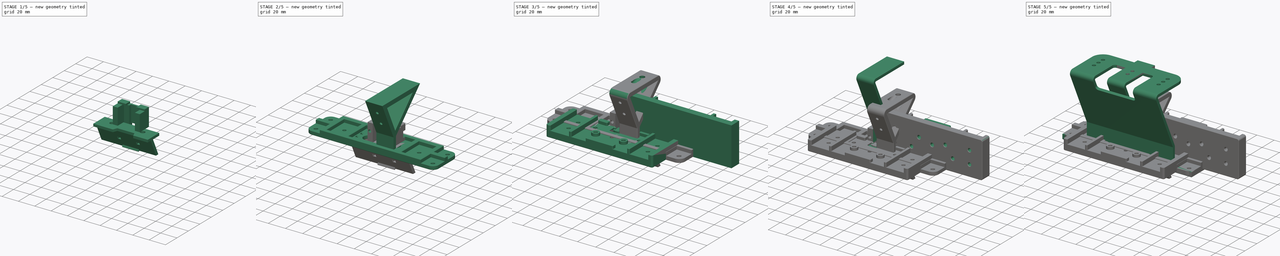
[diagram: build sequence overview — one tinted view per stage of 5, left to right]
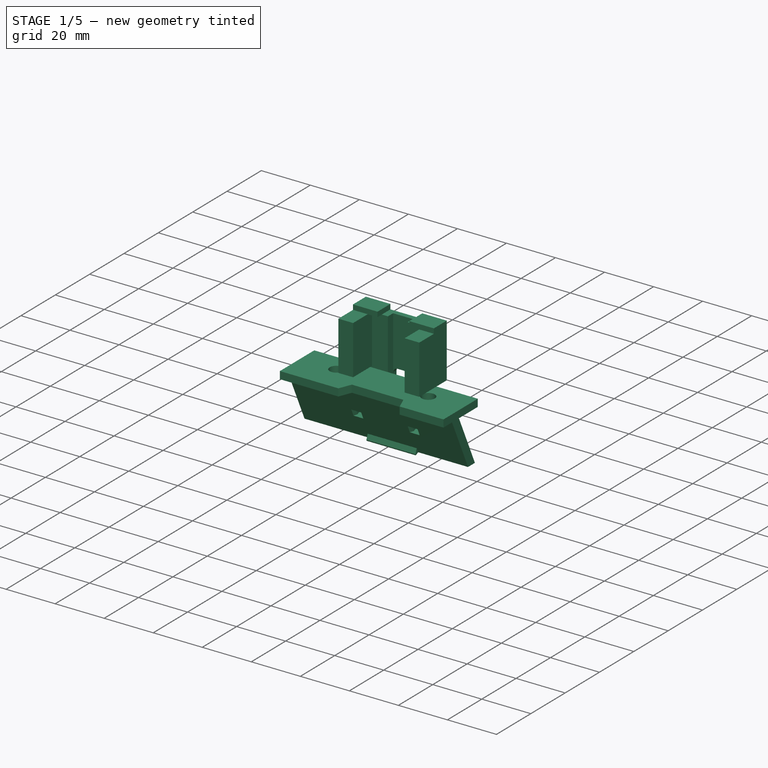
[diagram: stage 1 of 5 — iso view after this stage's code; geometry added in this stage tinted green]
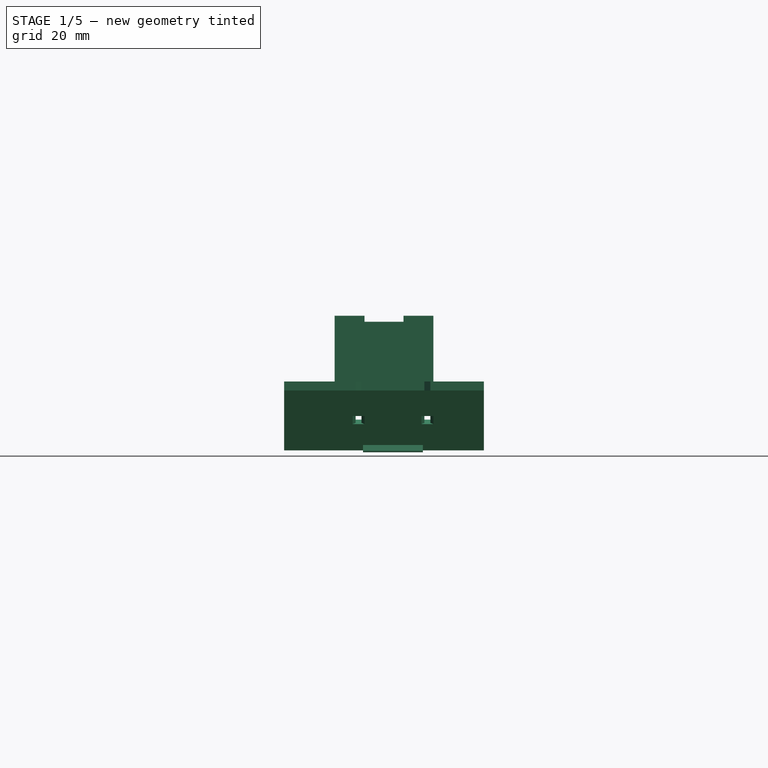
[diagram: stage 1 of 5 — front view after this stage's code; geometry added in this stage tinted green]
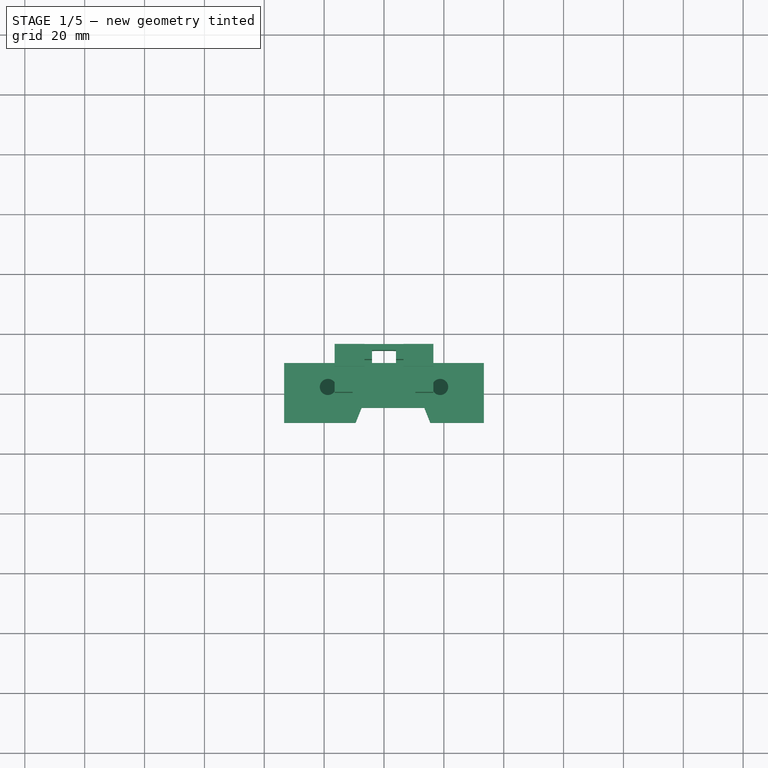
[diagram: stage 1 of 5 — top view after this stage's code; geometry added in this stage tinted green]
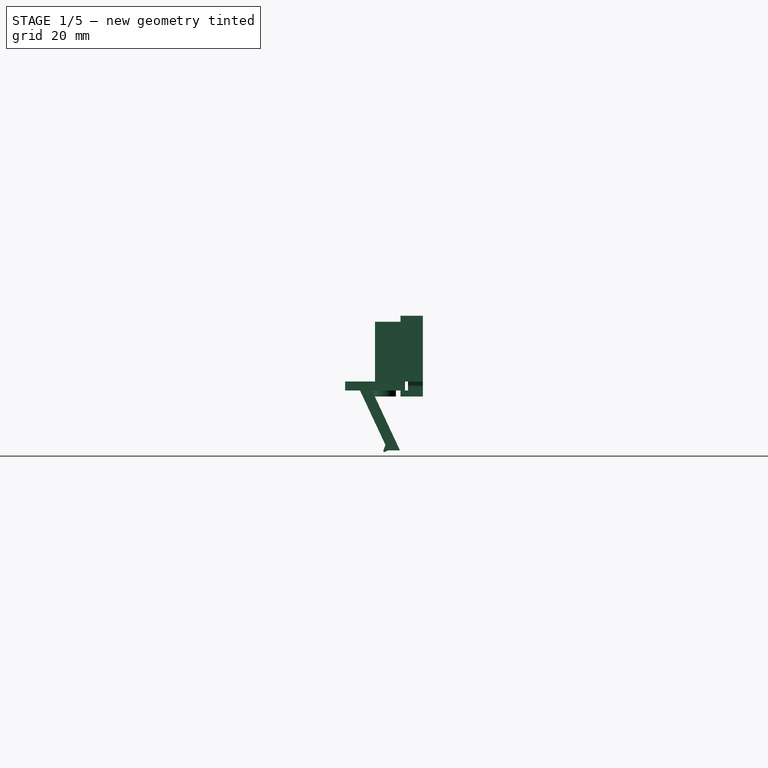
[diagram: stage 1 of 5 — right view after this stage's code; geometry added in this stage tinted green]
FCSTD DOCUMENT  (FreeCAD 0.19R24291 (Git))
Label: pajero-clock-metal-plate-short-arm
License: All rights reserved
LicenseURL: http://en.wikipedia.org/wiki/All_rights_reserved
objects: Sketcher::SketchObject×37, PartDesign::Pocket×17, PartDesign::Pad×16, PartDesign::Chamfer×9, PartDesign::Body×8, PartDesign::Fillet×7, Part::Feature×6, PartDesign::FeaturePython×5, Part::MultiFuse×5, Part::Cylinder×3, Part::Chamfer×3, Part::Box×2, Spreadsheet::Sheet×1, Part::Cut×1
note: 168 computed .brp shape members not serialized (recipe doc carries the construction recipe); baked Part::Feature solids carry a one-line shape summary decoded from their .brp

FEATURE [PartDesign::Body] Body003  label="back-plate"
  Group = -> [Sketch009,Pad003,Sketch010,Pad004,Chamfer003,Sketch028,Pocket014,Chamfer007003,Chamfer007004]
  Origin = -> Origin003
  Tip = -> Chamfer007004
FEATURE [Sketcher::SketchObject] Sketch029
  FullyConstrained = true
  MapMode = 5
  Placement = pos=(0,0,0) rot=(0.57735,0.57735,0.57735;2.0944rad)
  Support = -> [YZ_Plane006]
  sketch-geometry (8):
    g0: LineSegment StartX=-10 StartY=0 StartZ=0 EndX=10 EndY=0 EndZ=0
    g1: LineSegment StartX=10 StartY=0 StartZ=0 EndX=10 EndY=-3 EndZ=0
    g2: LineSegment StartX=10 StartY=-3 StartZ=0 EndX=-1 EndY=-3 EndZ=0
    g3: LineSegment StartX=-1 StartY=-3 StartZ=0 EndX=8.32615 EndY=-23 EndZ=0
    g4: LineSegment StartX=8.32615 StartY=-23 StartZ=0 EndX=4.32615 EndY=-23 EndZ=0
    g5: LineSegment StartX=4.32615 StartY=-23 StartZ=0 EndX=-5 EndY=-3 EndZ=0
    g6: LineSegment StartX=-5 StartY=-3 StartZ=0 EndX=-10 EndY=-3 EndZ=0
    g7: LineSegment StartX=-10 StartY=-3 StartZ=0 EndX=-10 EndY=0 EndZ=0
  constraints (24):
    c: PointOnObject(g0,g-1)
    c: PointOnObject(g0,g-1)
    c: Coincident(g0,g1)
    c: Vertical(g1)
    c: Coincident(g1,g2)
    c: Horizontal(g2)
    c: Coincident(g2,g3)
    c: Coincident(g3,g4)
    c: Horizontal(g4)
    c: Coincident(g4,g5)
    c: Coincident(g5,g6)
    c: Horizontal(g6)
    c: Coincident(g6,g7)
    c: Coincident(g7,g0)
    c: Vertical(g7)
    c: DistanceX(g0,g-1) = 10
    c: DistanceX(g-1,g0) = 10
    c: Horizontal(g5,g2)
    c: DistanceY(g7,g7) = 3
    c: DistanceX(g5,g2) = 4
    c: DistanceX(g-1,g5) = -5
    c: DistanceY(g5,g5) = 20
    c: Angle(g5,g2) = 1.13446
    c: Parallel(g5,g3)
FEATURE [PartDesign::Pad] Pad009
  Direction = (1,1,1)
  Length = 66.7
  Length2 = 100
  Midplane = true
  Placement = pos=(0,0,0) rot=(0.57735,0.57735,0.57735;2.0944rad)
  Profile = -> Sketch029
  Type = 0
FEATURE [Sketcher::SketchObject] Sketch030
  FullyConstrained = true
  MapMode = 5
  Placement = pos=(0,0,1e-16) rot=(0,0,-1;1.5708rad)
  Support = -> [Pad009]
  sketch-geometry (2):
    g0: Circle CenterX=-2 CenterY=18.75 CenterZ=0 NormalX=0 NormalY=0 NormalZ=1 AngleXU=0 Radius=2.7
    g1: Circle CenterX=-2 CenterY=-18.75 CenterZ=0 NormalX=0 NormalY=0 NormalZ=1 AngleXU=0 Radius=2.7
  constraints (6):
    c: DistanceX(g0,g-1) = 2
    c: DistanceY(g-1,g0) = 18.75
    c: Radius(g0) = 2.7
    c: Vertical(g1,g0)
    c: Equal(g1,g0)
    c: DistanceY(g1,g-1) = 18.75
FEATURE [PartDesign::Pocket] Pocket015
  BaseFeature = -> Pad009
  Length = 3
  Length2 = 100
  Placement = pos=(0,0,0) rot=(0.57735,0.57735,0.57735;2.0944rad)
  Profile = -> Sketch030
  Type = 0
FEATURE [Sketcher::SketchObject] Sketch031
  FullyConstrained = true
  MapMode = 5
  Placement = pos=(-1.7e-15,-5.25604,-2.45093) rot=(0.644711,0.644711,-0.410726;2.36216rad)
  Support = -> [Pocket015]
  sketch-geometry (8):
    g0: LineSegment StartX=10 StartY=15.5 StartZ=0 EndX=13 EndY=15.5 EndZ=0
    g1: LineSegment StartX=13 StartY=15.5 StartZ=0 EndX=13 EndY=13.5 EndZ=0
    g2: LineSegment StartX=13 StartY=13.5 StartZ=0 EndX=10 EndY=13.5 EndZ=0
    g3: LineSegment StartX=10 StartY=13.5 StartZ=0 EndX=10 EndY=15.5 EndZ=0
    g4: LineSegment StartX=10 StartY=-7.5 StartZ=0 EndX=13 EndY=-7.5 EndZ=0
    g5: LineSegment StartX=13 StartY=-7.5 StartZ=0 EndX=13 EndY=-9.5 EndZ=0
    g6: LineSegment StartX=13 StartY=-9.5 StartZ=0 EndX=10 EndY=-9.5 EndZ=0
    g7: LineSegment StartX=10 StartY=-9.5 StartZ=0 EndX=10 EndY=-7.5 EndZ=0
  constraints (24):
    c: Coincident(g0,g1)
    c: Coincident(g1,g2)
    c: Coincident(g2,g3)
    c: Coincident(g3,g0)
    c: Horizontal(g0)
    c: Horizontal(g2)
    c: Vertical(g1)
    c: Vertical(g3)
    c: Coincident(g4,g5)
    c: Coincident(g5,g6)
    c: Coincident(g6,g7)
    c: Coincident(g7,g4)
    c: Horizontal(g4)
    c: Horizontal(g6)
    c: Vertical(g5)
    c: Vertical(g7)
    c: Vertical(g4,g2)
    c: Vertical(g4,g1)
    c: DistanceY(g-1,g2) = 13.5
    c: DistanceY(g4,g-1) = 7.5
    c: DistanceY(g3,g3) = 2
    c: DistanceX(g0,g0) = 3
    c: Equal(g3,g7)
    c: DistanceX(g-1,g2) = 10
FEATURE [PartDesign::Pocket] Pocket016
  BaseFeature = -> Pocket015
  Length = 0
  Length2 = 100
  Placement = pos=(0,0,0) rot=(0.57735,0.57735,0.57735;2.0944rad)
  Profile = -> Sketch031
  Type = 3
  UpToFace = -> Pocket015 [Face10]
FEATURE [Sketcher::SketchObject] Sketch034
  FullyConstrained = true
  MapMode = 5
  Support = -> [XY_Plane007]
  sketch-geometry (12):
    g0: LineSegment StartX=-16.5 StartY=0 StartZ=0 EndX=-10.5 EndY=0 EndZ=0
    g1: LineSegment StartX=-10.5 StartY=0 StartZ=0 EndX=-10.5 EndY=11 EndZ=0
    g2: LineSegment StartX=-10.5 StartY=11 StartZ=0 EndX=-4 EndY=11 EndZ=0
    g3: LineSegment StartX=-4 StartY=11 StartZ=0 EndX=-4 EndY=14 EndZ=0
    g4: LineSegment StartX=-4 StartY=14 StartZ=0 EndX=4 EndY=14 EndZ=0
    g5: LineSegment StartX=4 StartY=14 StartZ=0 EndX=4 EndY=11 EndZ=0
    g6: LineSegment StartX=4 StartY=11 StartZ=0 EndX=10.5 EndY=11 EndZ=0
    g7: LineSegment StartX=10.5 StartY=11 StartZ=0 EndX=10.5 EndY=0 EndZ=0
    g8: LineSegment StartX=10.5 StartY=0 StartZ=0 EndX=16.5 EndY=0 EndZ=0
    g9: LineSegment StartX=-16.5 StartY=0 StartZ=0 EndX=-16.5 EndY=16 EndZ=0
    g10: LineSegment StartX=-16.5 StartY=16 StartZ=0 EndX=16.5 EndY=16 EndZ=0
    g11: LineSegment StartX=16.5 StartY=16 StartZ=0 EndX=16.5 EndY=0 EndZ=0
  constraints (36):
    c: PointOnObject(g0,g-1)
    c: PointOnObject(g0,g-1)
    c: Coincident(g0,g1)
    c: Vertical(g1)
    c: Coincident(g1,g2)
    c: Horizontal(g2)
    c: Coincident(g2,g3)
    c: Vertical(g3)
    c: Coincident(g3,g4)
    c: Horizontal(g4)
    c: Coincident(g4,g5)
    c: Vertical(g5)
    c: Coincident(g5,g6)
    c: Horizontal(g6)
    c: Coincident(g6,g7)
    c: PointOnObject(g7,g-1)
    c: Vertical(g7)
    c: Coincident(g7,g8)
    c: PointOnObject(g8,g-1)
    c: Vertical(g9)
    c: Coincident(g9,g10)
    c: Horizontal(g10)
    c: Coincident(g10,g11)
    c: Vertical(g11)
    c: Horizontal(g5,g2)
    c: DistanceY(g7,g7) = 11
    c: DistanceX(g0,g7) = 21
    c: DistanceX(g0,g-1) = 10.5
    c: DistanceY(g3,g3) = 3
    c: DistanceX(g4,g4) = 8
    c: DistanceX(g3,g-1) = 4
    c: Coincident(g9,g0)
    c: Coincident(g11,g8)
    c: DistanceX(g0,g0) = 6
    c: DistanceX(g8,g8) = 6
    c: DistanceY(g3,g9) = 2
FEATURE [PartDesign::Pad] Pad011
  Direction = (1,1,1)
  Length = 20
  Length2 = 100
  Profile = -> Sketch034
  Type = 0
FEATURE [Sketcher::SketchObject] Sketch035
  FullyConstrained = true
  MapMode = 5
  Placement = pos=(0,0,0) rot=(1,0,0;3.14159rad)
  Support = -> [Pad011]
  sketch-geometry (8):
    g0: LineSegment StartX=-4 StartY=-11 StartZ=0 EndX=-10.5 EndY=-11 EndZ=0
    g1: LineSegment StartX=-10.5 StartY=-11 StartZ=0 EndX=-10.5 EndY=-16 EndZ=0
    g2: LineSegment StartX=-10.5 StartY=-16 StartZ=0 EndX=-4 EndY=-16 EndZ=0
    g3: LineSegment StartX=-4 StartY=-16 StartZ=0 EndX=-4 EndY=-11 EndZ=0
    g4: LineSegment StartX=4 StartY=-11 StartZ=0 EndX=10.5 EndY=-11 EndZ=0
    g5: LineSegment StartX=10.5 StartY=-11 StartZ=0 EndX=10.5 EndY=-16 EndZ=0
    g6: LineSegment StartX=10.5 StartY=-16 StartZ=0 EndX=4 EndY=-16 EndZ=0
    g7: LineSegment StartX=4 StartY=-16 StartZ=0 EndX=4 EndY=-11 EndZ=0
  constraints (24):
    c: Coincident(g0,g1)
    c: Coincident(g1,g2)
    c: Coincident(g2,g3)
    c: Coincident(g3,g0)
    c: Horizontal(g0)
    c: Horizontal(g2)
    c: Vertical(g1)
    c: Vertical(g3)
    c: Coincident(g4,g5)
    c: Coincident(g5,g6)
    c: Coincident(g6,g7)
    c: Coincident(g7,g4)
    c: Horizontal(g4)
    c: Horizontal(g6)
    c: Vertical(g5)
    c: Vertical(g7)
    c: Horizontal(g0,g4)
    c: Horizontal(g2,g6)
    c: DistanceX(g0,g-1) = 10.5
    c: DistanceX(g-1,g4) = 10.5
    c: DistanceX(g0,g-1) = 4
    c: DistanceX(g-1,g4) = 4
    c: DistanceY(g0,g-1) = 11
    c: DistanceY(g3,g3) = 5
FEATURE [PartDesign::Pad] Pad012
  BaseFeature = -> Pad011
  Direction = (1,1,1)
  Length = 3
  Length2 = 100
  Profile = -> Sketch035
  Type = 0
FEATURE [Sketcher::SketchObject] Sketch036
  FullyConstrained = true
  MapMode = 5
  Placement = pos=(0,0,-3) rot=(1,0,0;3.14159rad)
  Support = -> [Pad012]
  sketch-geometry (8):
    g0: LineSegment StartX=-10.5 StartY=-16 StartZ=0 EndX=-4 EndY=-16 EndZ=0
    g1: LineSegment StartX=-4 StartY=-16 StartZ=0 EndX=-4 EndY=-8.5 EndZ=0
    g2: LineSegment StartX=-4 StartY=-8.5 StartZ=0 EndX=-10.5 EndY=-8.5 EndZ=0
    g3: LineSegment StartX=-10.5 StartY=-8.5 StartZ=0 EndX=-10.5 EndY=-16 EndZ=0
    g4: LineSegment StartX=4 StartY=-16 StartZ=0 EndX=10.5 EndY=-16 EndZ=0
    g5: LineSegment StartX=10.5 StartY=-16 StartZ=0 EndX=10.5 EndY=-8.5 EndZ=0
    g6: LineSegment StartX=10.5 StartY=-8.5 StartZ=0 EndX=4 EndY=-8.5 EndZ=0
    g7: LineSegment StartX=4 StartY=-8.5 StartZ=0 EndX=4 EndY=-16 EndZ=0
  constraints (24):
    c: Coincident(g0,g1)
    c: Coincident(g1,g2)
    c: Coincident(g2,g3)
    c: Coincident(g3,g0)
    c: Horizontal(g0)
    c: Horizontal(g2)
    c: Vertical(g1)
    c: Vertical(g3)
    c: Coincident(g4,g5)
    c: Coincident(g5,g6)
    c: Coincident(g6,g7)
    c: Coincident(g7,g4)
    c: Horizontal(g4)
    c: Horizontal(g6)
    c: Vertical(g5)
    c: Vertical(g7)
    c: Horizontal(g1,g6)
    c: Horizontal(g0,g4)
    c: DistanceX(g1,g-1) = 4
    c: DistanceX(g-1,g6) = 4
    c: DistanceX(g2,g-1) = 10.5
    c: DistanceX(g2,g5) = 21
    c: DistanceY(g1,g-1) = 8.5
    c: DistanceY(g0,g-1) = 16
FEATURE [PartDesign::Pad] Pad013
  BaseFeature = -> Pad012
  Direction = (1,1,1)
  Length = 2
  Length2 = 100
  Profile = -> Sketch036
  Type = 0
FEATURE [Sketcher::SketchObject] Sketch037
  FullyConstrained = true
  MapMode = 5
  Placement = pos=(0,0,20) rot=(0,0,1;0rad)
  Support = -> [Pad013]
  sketch-geometry (8):
    g0: LineSegment StartX=-16.5 StartY=16 StartZ=0 EndX=-6.5 EndY=16 EndZ=0
    g1: LineSegment StartX=-6.5 StartY=16 StartZ=0 EndX=-6.5 EndY=8.5 EndZ=0
    g2: LineSegment StartX=-6.5 StartY=8.5 StartZ=0 EndX=-16.5 EndY=8.5 EndZ=0
    g3: LineSegment StartX=-16.5 StartY=8.5 StartZ=0 EndX=-16.5 EndY=16 EndZ=0
    g4: LineSegment StartX=16.5 StartY=16 StartZ=0 EndX=6.5 EndY=16 EndZ=0
    g5: LineSegment StartX=6.5 StartY=16 StartZ=0 EndX=6.5 EndY=8.5 EndZ=0
    g6: LineSegment StartX=6.5 StartY=8.5 StartZ=0 EndX=16.5 EndY=8.5 EndZ=0
    g7: LineSegment StartX=16.5 StartY=8.5 StartZ=0 EndX=16.5 EndY=16 EndZ=0
  constraints (24):
    c: Coincident(g0,g1)
    c: Coincident(g1,g2)
    c: Coincident(g2,g3)
    c: Coincident(g3,g0)
    c: Horizontal(g0)
    c: Horizontal(g2)
    c: Vertical(g1)
    c: Vertical(g3)
    c: Coincident(g4,g5)
    c: Coincident(g5,g6)
    c: Coincident(g6,g7)
    c: Coincident(g7,g4)
    c: Horizontal(g4)
    c: Horizontal(g6)
    c: Vertical(g5)
    c: Vertical(g7)
    c: DistanceX(g2,g-1) = 16.5
    c: DistanceX(g2,g6) = 33
    c: Horizontal(g1,g5)
    c: Horizontal(g0,g4)
    c: DistanceX(g0,g0) = 10
    c: DistanceX(g4,g4) = 10
    c: DistanceY(g-1,g1) = 8.5
    c: DistanceY(g-1,g0) = 16
FEATURE [PartDesign::Pad] Pad014
  BaseFeature = -> Pad013
  Direction = (1,1,1)
  Length = 2
  Length2 = 100
  Profile = -> Sketch037
  Refine = true
  Type = 0
FEATURE [PartDesign::Fillet] Fillet005009
  Base = -> Pad014 [Edge18,Edge4,Edge2,Edge52]
  BaseFeature = -> Pad014
  Radius = 2
  SupportTransform = false
FEATURE [PartDesign::Body] Body004004003003  label="cap-holder"
  Group = -> [Sketch034,Pad011,Sketch035,Pad012,Sketch036,Pad013,Sketch037,Pad014,Fillet005009,Fillet005010,Fillet005011,Sketch038,Pocket018,Sketch039,Pocket019,Chamfer007006]
  Origin = -> Origin007
  Placement = pos=(0,-5.01523,-3.44202) rot=(1,0,0;3.57793rad)
  Tip = -> Chamfer007006
FEATURE [PartDesign::Pocket] Pocket020
  BaseFeature = -> Pocket016
  Length = 0
  Length2 = 100
  Placement = pos=(0,0,0) rot=(0.57735,0.57735,0.57735;2.0944rad)
  Profile = -> Sketch031
  Type = 3
  UpToFace = -> Pocket016 [Face10]
FEATURE [Sketcher::SketchObject] Sketch040
  ExternalGeometry = -> [Pocket020]
  FullyConstrained = true
  MapMode = 5
  Placement = pos=(-2.8e-15,-5.25604,-2.45093) rot=(0.644711,0.644711,-0.410726;2.36216rad)
  Support = -> [Pocket020]
  sketch-geometry (4):
    g0: LineSegment StartX=22.6734 StartY=13 StartZ=0 EndX=20.6734 EndY=13 EndZ=0
    g1: LineSegment StartX=20.6734 StartY=13 StartZ=0 EndX=20.6734 EndY=-7 EndZ=0
    g2: LineSegment StartX=20.6734 StartY=-7 StartZ=0 EndX=22.6734 EndY=-7 EndZ=0
    g3: LineSegment StartX=22.6734 StartY=-7 StartZ=0 EndX=22.6734 EndY=13 EndZ=0
  constraints (12):
    c: Coincident(g0,g1)
    c: Coincident(g1,g2)
    c: Coincident(g2,g3)
    c: Coincident(g3,g0)
    c: Horizontal(g0)
    c: Horizontal(g2)
    c: Vertical(g1)
    c: Vertical(g3)
    c: PointOnObject(g0,g-3)
    c: DistanceY(g3,g3) = 20
    c: DistanceY(g1,g-1) = 7
    c: DistanceX(g0,g0) = 2
FEATURE [PartDesign::Pad] Pad015
  BaseFeature = -> Pocket020
  Direction = (1,1,1)
  Length = 1.5
  Length2 = 100
  Placement = pos=(0,0,0) rot=(0.57735,0.57735,0.57735;2.0944rad)
  Profile = -> Sketch040
  Type = 0
FEATURE [PartDesign::Chamfer] Chamfer007007
  Angle = 45
  Base = -> Pad015 [Edge66]
  BaseFeature = -> Pad015
  ChamferType = 0
  FlipDirection = false
  Placement = pos=(0,0,0) rot=(0.57735,0.57735,0.57735;2.0944rad)
  Size = 1.49
  Size2 = 1
  SupportTransform = false
FEATURE [Sketcher::SketchObject] Sketch041
  ExternalGeometry = -> [Chamfer007007]
  FullyConstrained = true
  MapMode = 5
  Placement = pos=(8e-16,-2.3e-15,-3) rot=(0.707107,0.707107,0;3.14159rad)
  Support = -> [Chamfer007007]
  sketch-geometry (4):
    g0: LineSegment StartX=-10 StartY=15.5 StartZ=0 EndX=-5 EndY=13.5 EndZ=0
    g1: LineSegment StartX=-5 StartY=13.5 StartZ=0 EndX=-5 EndY=-7.5 EndZ=0
    g2: LineSegment StartX=-5 StartY=-7.5 StartZ=0 EndX=-10 EndY=-9.5 EndZ=0
    g3: LineSegment StartX=-10 StartY=-9.5 StartZ=0 EndX=-10 EndY=15.5 EndZ=0
  constraints (12):
    c: PointOnObject(g0,g-4)
    c: PointOnObject(g0,g-3)
    c: Coincident(g0,g1)
    c: PointOnObject(g1,g-3)
    c: Coincident(g1,g2)
    c: PointOnObject(g2,g-4)
    c: Coincident(g2,g3)
    c: Coincident(g3,g0)
    c: DistanceY(g-1,g0) = 13.5
    c: DistanceY(g1,g1) = 21
    c: DistanceY(g0,g0) = 2
    c: DistanceY(g2,g1) = 2
FEATURE [PartDesign::Pocket] Pocket021
  BaseFeature = -> Chamfer007007
  Length = 5
  Length2 = 100
  Placement = pos=(0,0,0) rot=(0.57735,0.57735,0.57735;2.0944rad)
  Profile = -> Sketch041
  Type = 1
FEATURE [PartDesign::Chamfer] Chamfer007008
  Angle = 45
  Base = -> Pocket021 [Edge21,Edge20,Edge25,Edge24,Edge64,Edge67,Edge56,Edge59]
  BaseFeature = -> Pocket021
  ChamferType = 0
  FlipDirection = false
  Placement = pos=(0,0,0) rot=(0.57735,0.57735,0.57735;2.0944rad)
  Size = 1
  Size2 = 1
  SupportTransform = false
FEATURE [Sketcher::SketchObject] Sketch042
  ExternalGeometry = -> [Chamfer007008]
  FullyConstrained = true
  MapMode = 5
  Placement = pos=(0,0,-1.91e-14) rot=(0,0,-1;1.5708rad)
  Support = -> [Chamfer007008]
  sketch-geometry (4):
    g0: Circle CenterX=-2 CenterY=18.75 CenterZ=0 NormalX=0 NormalY=0 NormalZ=1 AngleXU=0 Radius=2.75
    g1: Circle CenterX=-2 CenterY=-18.75 CenterZ=0 NormalX=0 NormalY=0 NormalZ=1 AngleXU=0 Radius=2.75
    g2: Circle CenterX=-2 CenterY=-18.75 CenterZ=0 NormalX=0 NormalY=0 NormalZ=1 AngleXU=0 Radius=5
    g3: Circle CenterX=-2 CenterY=18.75 CenterZ=0 NormalX=0 NormalY=0 NormalZ=1 AngleXU=0 Radius=5
  constraints (8):
    c: Coincident(g0,g-3)
    c: Coincident(g1,g-4)
    c: Coincident(g2,g1)
    c: Coincident(g3,g0)
    c: Equal(g0,g1)
    c: Equal(g3,g2)
    c: Radius(g0) = 2.75
    c: Radius(g3) = 5
FEATURE [PartDesign::Pad] Pad016
  BaseFeature = -> Chamfer007008
  Direction = (1,1,1)
  Length = 5
  Length2 = 100
  Placement = pos=(0,0,0) rot=(0.57735,0.57735,0.57735;2.0944rad)
  Profile = -> Sketch042
  Reversed = true
  Type = 0
FEATURE [PartDesign::Body] Body004004003002  label="din-cover"
  Group = -> [Sketch029,Pad009,Sketch030,Pocket015,Sketch031,Pocket016,Pocket020,Sketch040,Pad015,Chamfer007007,Sketch041,Pocket021,Chamfer007008,Sketch042,Pad016]
  Origin = -> Origin006
  Tip = -> Pad016
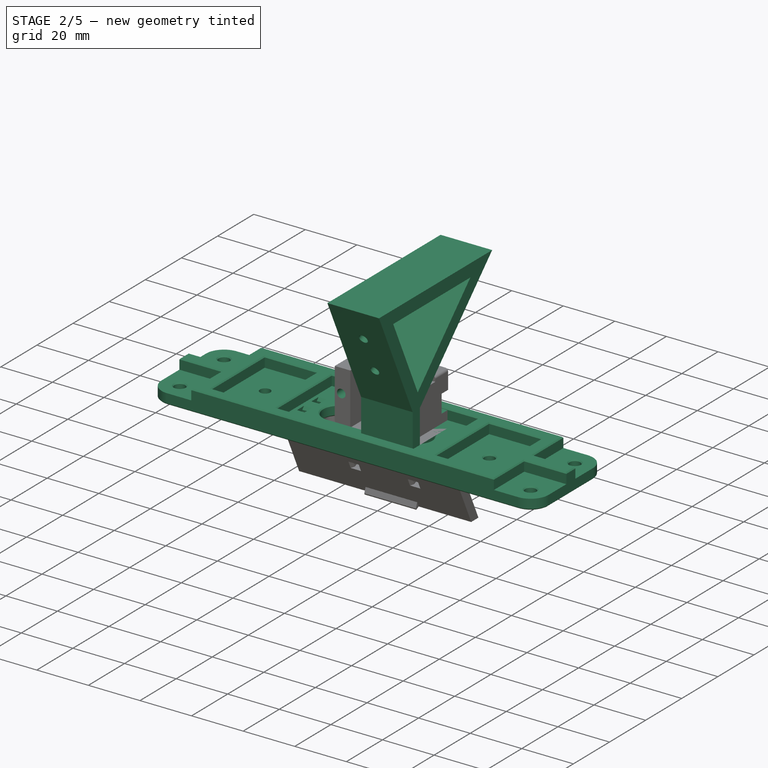
[diagram: stage 2 of 5 — iso view after this stage's code; geometry added in this stage tinted green]
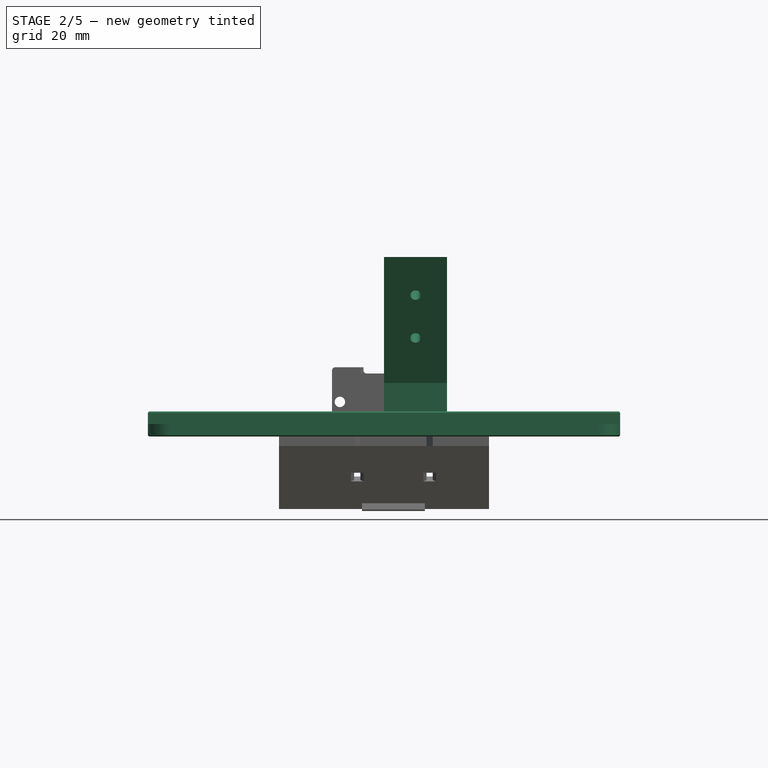
[diagram: stage 2 of 5 — front view after this stage's code; geometry added in this stage tinted green]
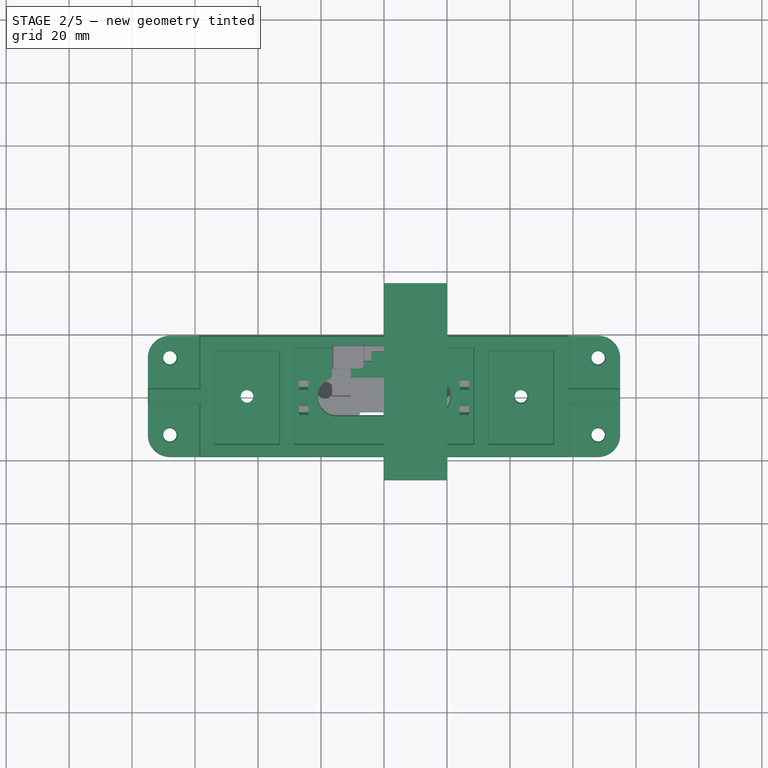
[diagram: stage 2 of 5 — top view after this stage's code; geometry added in this stage tinted green]
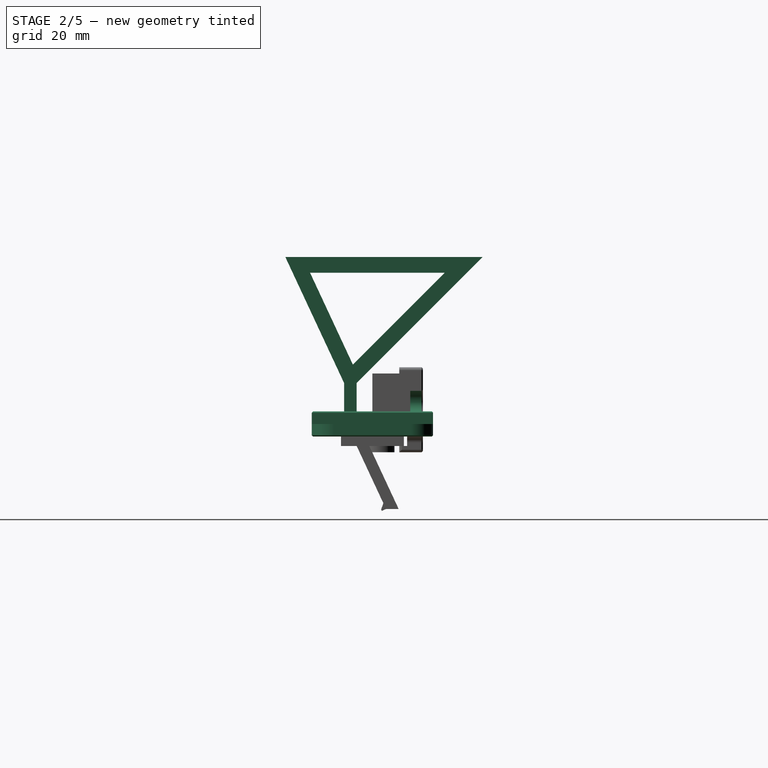
[diagram: stage 2 of 5 — right view after this stage's code; geometry added in this stage tinted green]
FEATURE [Sketcher::SketchObject] Sketch009
  FullyConstrained = true
  MapMode = 5
  Support = -> [XY_Plane003]
  sketch-geometry (22):
    g0: LineSegment StartX=-68 StartY=12.25 StartZ=0 EndX=68 EndY=12.25 EndZ=0
    g1: LineSegment StartX=68 StartY=12.25 StartZ=0 EndX=68 EndY=-12.25 EndZ=0
    g2: LineSegment StartX=68 StartY=-12.25 StartZ=0 EndX=-68 EndY=-12.25 EndZ=0
    g3: LineSegment StartX=-68 StartY=-12.25 StartZ=0 EndX=-68 EndY=12.25 EndZ=0
    g4: Circle CenterX=-68 CenterY=12.25 CenterZ=0 NormalX=0 NormalY=0 NormalZ=1 AngleXU=0 Radius=2.1
    g5: Circle CenterX=-68 CenterY=-12.25 CenterZ=0 NormalX=0 NormalY=0 NormalZ=1 AngleXU=0 Radius=2.1
    g6: Circle CenterX=68 CenterY=12.25 CenterZ=0 NormalX=0 NormalY=0 NormalZ=1 AngleXU=0 Radius=2.1
    g7: Circle CenterX=68 CenterY=-12.25 CenterZ=0 NormalX=0 NormalY=0 NormalZ=1 AngleXU=0 Radius=2.1
    g8: LineSegment StartX=-68 StartY=19.25 StartZ=0 EndX=68 EndY=19.25 EndZ=0
    g9: LineSegment StartX=-68 StartY=-19.25 StartZ=0 EndX=68 EndY=-19.25 EndZ=0
    g10: LineSegment StartX=75 StartY=12.25 StartZ=0 EndX=75 EndY=-12.25 EndZ=0
    g11: LineSegment StartX=-75 StartY=12.25 StartZ=0 EndX=-75 EndY=-12.25 EndZ=0
    g12: ArcOfCircle CenterX=68 CenterY=12.25 CenterZ=0 NormalX=0 NormalY=0 NormalZ=1 AngleXU=0 Radius=7 StartAngle=-9e-16 EndAngle=1.5708
    g13: ArcOfCircle CenterX=68 CenterY=-12.25 CenterZ=0 NormalX=0 NormalY=0 NormalZ=1 AngleXU=0 Radius=7 StartAngle=4.71239 EndAngle=6.28319
    g14: ArcOfCircle CenterX=-68 CenterY=12.25 CenterZ=0 NormalX=0 NormalY=0 NormalZ=1 AngleXU=0 Radius=7 StartAngle=1.5708 EndAngle=3.14159
    g15: ArcOfCircle CenterX=-68 CenterY=-12.25 CenterZ=0 NormalX=0 NormalY=0 NormalZ=1 AngleXU=0 Radius=7 StartAngle=3.14159 EndAngle=4.71239
    g16: Circle CenterX=-43.5 CenterY=4e-16 CenterZ=0 NormalX=0 NormalY=0 NormalZ=1 AngleXU=0 Radius=2
    g17: Circle CenterX=43.5 CenterY=4e-16 CenterZ=0 NormalX=0 NormalY=0 NormalZ=1 AngleXU=0 Radius=2
    g18: ArcOfCircle CenterX=-5 CenterY=0 CenterZ=0 NormalX=0 NormalY=0 NormalZ=1 AngleXU=0 Radius=5 StartAngle=1.5708 EndAngle=4.71239
    g19: ArcOfCircle CenterX=5 CenterY=7e-16 CenterZ=0 NormalX=0 NormalY=0 NormalZ=1 AngleXU=0 Radius=5 StartAngle=4.71239 EndAngle=7.85398
    g20: LineSegment StartX=-5 StartY=-5 StartZ=0 EndX=5 EndY=-5 EndZ=0
    g21: LineSegment StartX=-5 StartY=5 StartZ=0 EndX=5 EndY=5 EndZ=0
  constraints (61):
    c: Coincident(g0,g1)
    c: Coincident(g1,g2)
    c: Coincident(g2,g3)
    c: Coincident(g3,g0)
    c: Horizontal(g0)
    c: Horizontal(g2)
    c: Vertical(g1)
    c: Vertical(g3)
    c: DistanceX(g0,g0) = 136
    c: DistanceX(g0,g-1) = 68
    c: DistanceY(g3,g3) = 24.5
    c: DistanceY(g-1,g0) = 12.25
    c: Coincident(g4,g0)
    c: Coincident(g5,g2)
    c: Coincident(g6,g0)
    c: Coincident(g7,g1)
    c: Radius(g4) = 2.1
    c: Radius(g5) = 2.1
    c: Radius(g6) = 2.1
    c: Radius(g7) = 2.1
    c: Horizontal(g8)
    c: Horizontal(g9)
    c: Vertical(g10)
    c: Vertical(g11)
    c: Horizontal(g11,g4)
    c: Horizontal(g11,g5)
    c: Horizontal(g5,g10)
    c: Vertical(g8,g4)
    c: Vertical(g4,g9)
    c: Vertical(g8,g6)
    c: Vertical(g6,g9)
    c: DistanceY(g6,g8) = 7
    c: Horizontal(g10,g6)
    c: PointOnObject(g12,g1)
    c: Coincident(g12,g8)
    c: Coincident(g12,g10)
    c: Coincident(g13,g7)
    c: Coincident(g13,g10)
    c: Coincident(g13,g9)
    c: Coincident(g14,g4)
    c: Coincident(g14,g11)
    c: Coincident(g14,g8)
    c: Coincident(g15,g5)
    c: Coincident(g15,g9)
    c: Coincident(g15,g11)
    c: Horizontal(g17,g16)
    c: DistanceX(g16,g-1) = 43.5
    c: DistanceX(g-1,g17) = 43.5
    c: DistanceY(g16,g4) = 12.25
    c: Radius(g16) = 2
    c: Radius(g17) = 2
    c: Tangent(g18,g21) = 1.5708
    c: Tangent(g18,g20) = -1.5708
    c: Tangent(g20,g19) = -1.5708
    c: Tangent(g21,g19) = 1.5708
    c: Horizontal(g20)
    c: Equal(g18,g19)
    c: PointOnObject(g18,g-1)
    c: DistanceX(g18,g-1) = 5
    c: DistanceX(g-1,g19) = 5
    c: Radius(g19) = 5
FEATURE [PartDesign::Pad] Pad003
  Direction = (1,1,1)
  Length = 4
  Length2 = 100
  Profile = -> Sketch009
  Type = 0
FEATURE [Sketcher::SketchObject] Sketch010
  ExternalGeometry = -> [Pad003]
  FullyConstrained = true
  MapMode = 5
  Placement = pos=(0,0,4) rot=(0,0,1;0rad)
  Support = -> [Pad003]
  sketch-geometry (24):
    g0: LineSegment StartX=-53.65 StartY=14.25 StartZ=0 EndX=-33.35 EndY=14.25 EndZ=0
    g1: LineSegment StartX=-33.35 StartY=14.25 StartZ=0 EndX=-33.35 EndY=-15.15 EndZ=0
    g2: LineSegment StartX=-33.35 StartY=-15.15 StartZ=0 EndX=-53.65 EndY=-15.15 EndZ=0
    g3: LineSegment StartX=-53.65 StartY=-15.15 StartZ=0 EndX=-53.65 EndY=14.25 EndZ=0
    g4: LineSegment StartX=33.35 StartY=14.25 StartZ=0 EndX=53.65 EndY=14.25 EndZ=0
    g5: LineSegment StartX=53.65 StartY=14.25 StartZ=0 EndX=53.65 EndY=-15.15 EndZ=0
    g6: LineSegment StartX=53.65 StartY=-15.15 StartZ=0 EndX=33.35 EndY=-15.15 EndZ=0
    g7: LineSegment StartX=33.35 StartY=-15.15 StartZ=0 EndX=33.35 EndY=14.25 EndZ=0
    g8: LineSegment StartX=-58.65 StartY=19.25 StartZ=0 EndX=58.65 EndY=19.25 EndZ=0
    g9: LineSegment StartX=58.65 StartY=19.25 StartZ=0 EndX=58.65 EndY=2.5 EndZ=0
    g10: LineSegment StartX=58.65 StartY=-19.25 StartZ=0 EndX=-58.65 EndY=-19.25 EndZ=0
    g11: LineSegment StartX=-58.65 StartY=-19.25 StartZ=0 EndX=-58.65 EndY=-2.5 EndZ=0
    g12: LineSegment StartX=-28.35 StartY=15.25 StartZ=0 EndX=28.35 EndY=15.25 EndZ=0
    g13: LineSegment StartX=28.35 StartY=15.25 StartZ=0 EndX=28.35 EndY=-15.15 EndZ=0
    g14: LineSegment StartX=28.35 StartY=-15.15 StartZ=0 EndX=-28.35 EndY=-15.15 EndZ=0
    g15: LineSegment StartX=-28.35 StartY=-15.15 StartZ=0 EndX=-28.35 EndY=15.25 EndZ=0
    g16: LineSegment StartX=-58.65 StartY=2.5 StartZ=0 EndX=-75 EndY=2.5 EndZ=0
    g17: LineSegment StartX=-75 StartY=2.5 StartZ=0 EndX=-75 EndY=-2.5 EndZ=0
    g18: LineSegment StartX=-75 StartY=-2.5 StartZ=0 EndX=-58.65 EndY=-2.5 EndZ=0
    g19: LineSegment StartX=58.65 StartY=2.5 StartZ=0 EndX=75 EndY=2.5 EndZ=0
    g20: LineSegment StartX=75 StartY=2.5 StartZ=0 EndX=75 EndY=-2.5 EndZ=0
    g21: LineSegment StartX=75 StartY=-2.5 StartZ=0 EndX=58.65 EndY=-2.5 EndZ=0
    g22: LineSegment StartX=-58.65 StartY=2.5 StartZ=0 EndX=-58.65 EndY=19.25 EndZ=0
    g23: LineSegment StartX=58.65 StartY=-2.5 StartZ=0 EndX=58.65 EndY=-19.25 EndZ=0
  constraints (70):
    c: Coincident(g0,g1)
    c: Coincident(g1,g2)
    c: Coincident(g2,g3)
    c: Coincident(g3,g0)
    c: Horizontal(g0)
    c: Horizontal(g2)
    c: Vertical(g1)
    c: Vertical(g3)
    c: DistanceX(g0,g-3) = 10.15
    c: DistanceX(g-3,g0) = 10.15
    c: DistanceY(g-3,g0) = 14.25
    c: DistanceY(g2,g-3) = 15.15
    c: Coincident(g4,g5)
    c: Coincident(g5,g6)
    c: Coincident(g6,g7)
    c: Coincident(g7,g4)
    c: Horizontal(g4)
    c: Horizontal(g6)
    c: Vertical(g5)
    c: Vertical(g7)
    c: DistanceY(g-4,g4) = 14.25
    c: DistanceY(g6,g-4) = 15.15
    c: DistanceX(g4,g-4) = 10.15
    c: DistanceX(g-4,g4) = 10.15
    c: Coincident(g8,g9)
    c: Coincident(g23,g10)
    c: Coincident(g10,g11)
    c: Coincident(g22,g8)
    c: Horizontal(g8)
    c: Horizontal(g10)
    c: Vertical(g9)
    c: Vertical(g11)
    c: DistanceY(g10,g-3) = 19.25
    c: DistanceX(g10,g2) = 5
    c: DistanceX(g5,g23) = 5
    c: DistanceY(g0,g8) = 5
    c: Coincident(g12,g13)
    c: Coincident(g13,g14)
    c: Coincident(g14,g15)
    c: Coincident(g15,g12)
    c: Horizontal(g12)
    c: Horizontal(g14)
    c: Vertical(g13)
    c: Vertical(g15)
    c: DistanceX(g1,g14) = 5
    c: DistanceX(g13,g6) = 5
    c: Horizontal(g13,g6)
    c: DistanceY(g12,g8) = 4
    c: Horizontal(g16)
    c: Coincident(g16,g17)
    c: Vertical(g17)
    c: Coincident(g17,g18)
    c: Horizontal(g18)
    c: Horizontal(g19)
    c: Coincident(g19,g20)
    c: Vertical(g20)
    c: Coincident(g20,g21)
    c: Horizontal(g21)
    c: DistanceX(g-4,g19) = 31.5
    c: DistanceX(g16,g-3) = 31.5
    c: Horizontal(g16,g19)
    c: Horizontal(g20,g17)
    c: DistanceY(g17,g17) = 5
    c: DistanceY(g-3,g16) = 2.5
    c: Coincident(g11,g18)
    c: Coincident(g22,g16)
    c: Tangent(g11,g22)
    c: Coincident(g9,g19)
    c: Coincident(g23,g21)
    c: Tangent(g9,g23)
FEATURE [PartDesign::Pad] Pad004
  BaseFeature = -> Pad003
  Direction = (1,1,1)
  Length = 4
  Length2 = 100
  Profile = -> Sketch010
  Refine = true
  Type = 0
FEATURE [Part::Feature] Body004004001  label="pcb-mounter-font001"
  Placement = pos=(0,-20.9196,44.8622) rot=(1,0,0;5.14872rad)
  shape: bbox 85 x 25.04 x 41.73 mm, 93 faces (baked)
FEATURE [Sketcher::SketchObject] Sketch011
  FullyConstrained = true
  MapMode = 5
  Placement = pos=(0,0,0) rot=(0.57735,0.57735,0.57735;2.0944rad)
  Support = -> [YZ_Plane004]
  sketch-geometry (13):
    g0: LineSegment StartX=-15 StartY=4 StartZ=0 EndX=-15 EndY=0 EndZ=0
    g1: LineSegment StartX=-15 StartY=0 StartZ=0 EndX=10 EndY=0 EndZ=0
    g2: LineSegment StartX=10 StartY=0 StartZ=0 EndX=10 EndY=4 EndZ=0
    g3: LineSegment StartX=10 StartY=4 StartZ=0 EndX=-5 EndY=4 EndZ=0
    g4: LineSegment StartX=-15 StartY=4 StartZ=0 EndX=-9 EndY=4 EndZ=0
    g5: LineSegment StartX=-9 StartY=4 StartZ=0 EndX=-9 EndY=17 EndZ=0
    g6: LineSegment StartX=-9 StartY=17 StartZ=0 EndX=-27.6523 EndY=57 EndZ=0
    g7: LineSegment StartX=-27.6523 StartY=57 StartZ=0 EndX=35 EndY=57 EndZ=0
    g8: LineSegment StartX=-5 StartY=17 StartZ=0 EndX=-5 EndY=4 EndZ=0
    g9: LineSegment StartX=-5 StartY=17 StartZ=0 EndX=35 EndY=57 EndZ=0
    g10: LineSegment StartX=-19.8039 StartY=52 StartZ=0 EndX=22.9289 EndY=52 EndZ=0
    g11: LineSegment StartX=22.9289 StartY=52 StartZ=0 EndX=-6.21421 EndY=22.8569 EndZ=0
    g12: LineSegment StartX=-6.21421 StartY=22.8569 StartZ=0 EndX=-19.8039 EndY=52 EndZ=0
  constraints (39):
    c: PointOnObject(g0,g-1)
    c: Vertical(g0)
    c: Coincident(g0,g1)
    c: PointOnObject(g1,g-1)
    c: Coincident(g1,g2)
    c: Vertical(g2)
    c: Coincident(g2,g3)
    c: Horizontal(g3)
    c: Coincident(g0,g4)
    c: Horizontal(g4)
    c: DistanceX(g1,g1) = 25
    c: DistanceX(g0,g-1) = 15
    c: Horizontal(g2,g0)
    c: DistanceY(g0,g0) = 4
    c: DistanceX(g4,g4) = 6
    c: DistanceX(g3,g3) = 15
    c: Coincident(g5,g4)
    c: Vertical(g5)
    c: Coincident(g6,g5)
    c: Coincident(g7,g6)
    c: Horizontal(g7)
    c: Coincident(g8,g3)
    c: Vertical(g8)
    c: Coincident(g9,g8)
    c: Coincident(g9,g7)
    c: Horizontal(g5,g8)
    c: DistanceY(g5,g5) = 13
    c: Angle(g6,g5) = 2.70526
    c: Angle(g8,g9) = 2.35619
    c: DistanceY(g5,g6) = 40
    c: Horizontal(g10)
    c: Coincident(g10,g11)
    c: Coincident(g11,g12)
    c: Coincident(g12,g10)
    c: Parallel(g12,g6)
    c: Parallel(g11,g9)
    c: Distance(g11,g6) = 5
    c: Distance(g11,g9) = 5
    c: Distance(g10,g7) = 5
FEATURE [PartDesign::Pad] Pad005
  Direction = (1,1,1)
  Length = 20
  Length2 = 100
  Placement = pos=(0,0,0) rot=(0.57735,0.57735,0.57735;2.0944rad)
  Profile = -> Sketch011
  Type = 0
FEATURE [Sketcher::SketchObject] Sketch012
  ExternalGeometry = -> [Pad005]
  FullyConstrained = true
  MapMode = 5
  Placement = pos=(1.2e-15,3.65037,1.7022) rot=(-0.473306,-0.473306,-0.742942;1.86366rad)
  Support = -> [Pad005]
  sketch-geometry (2):
    g0: Circle CenterX=35 CenterY=10 CenterZ=0 NormalX=0 NormalY=0 NormalZ=1 AngleXU=0 Radius=1.65
    g1: Circle CenterX=50 CenterY=10 CenterZ=0 NormalX=0 NormalY=0 NormalZ=1 AngleXU=0 Radius=1.65
  constraints (6):
    c: DistanceY(g-1,g0) = 10
    c: Radius(g0) = 1.65
    c: DistanceX(g-1,g0) = 35
    c: Horizontal(g1,g0)
    c: DistanceX(g0,g1) = 15
    c: Radius(g1) = 1.65
FEATURE [PartDesign::Pocket] Pocket001
  BaseFeature = -> Pad005
  Length = 0
  Length2 = 100
  Placement = pos=(0,0,0) rot=(0.57735,0.57735,0.57735;2.0944rad)
  Profile = -> Sketch012
  Type = 3
  UpToFace = -> Pad005 [Face8]
FEATURE [PartDesign::Chamfer] Chamfer003
  Angle = 45
  Base = -> Pad004 [Face2,Face21,Edge53,Edge43,Edge48,Edge47,Edge45,Edge56,Edge50,Edge34,Edge29]
  BaseFeature = -> Pad004
  ChamferType = 0
  FlipDirection = false
  Size = 0.4
  Size2 = 1
  SupportTransform = false
FEATURE [PartDesign::Body] Body004004002  label="arm"
  Group = -> [Sketch011,Pad005,Sketch012,Pocket001,Sketch024,Pocket010,Fillet,Sketch025,Pocket011,Sketch026,Pocket012,Sketch027,Pocket013,Chamfer007002]
  Origin = -> Origin004
  Placement = pos=(-53.5,0,4) rot=(0,0,1;0rad)
  Tip = -> Chamfer007002
FEATURE [Sketcher::SketchObject] Sketch028
  FullyConstrained = true
  MapMode = 5
  Placement = pos=(0,0,4) rot=(0,0,1;0rad)
  Support = -> [Chamfer003]
  sketch-geometry (20):
    g0: ArcOfCircle CenterX=-15 CenterY=0 CenterZ=0 NormalX=0 NormalY=0 NormalZ=1 AngleXU=0 Radius=6 StartAngle=1.5708 EndAngle=4.71239
    g1: ArcOfCircle CenterX=15 CenterY=1e-16 CenterZ=0 NormalX=0 NormalY=0 NormalZ=1 AngleXU=0 Radius=6 StartAngle=4.71239 EndAngle=7.85398
    g2: LineSegment StartX=-15 StartY=-6 StartZ=0 EndX=15 EndY=-6 EndZ=0
    g3: LineSegment StartX=-15 StartY=6 StartZ=0 EndX=15 EndY=6 EndZ=0
    g4: LineSegment StartX=-27 StartY=5 StartZ=0 EndX=-24 EndY=5 EndZ=0
    g5: LineSegment StartX=-24 StartY=5 StartZ=0 EndX=-24 EndY=3 EndZ=0
    g6: LineSegment StartX=-24 StartY=3 StartZ=0 EndX=-27 EndY=3 EndZ=0
    g7: LineSegment StartX=-27 StartY=3 StartZ=0 EndX=-27 EndY=5 EndZ=0
    g8: LineSegment StartX=-27 StartY=-3 StartZ=0 EndX=-24 EndY=-3 EndZ=0
    g9: LineSegment StartX=-24 StartY=-3 StartZ=0 EndX=-24 EndY=-5 EndZ=0
    g10: LineSegment StartX=-24 StartY=-5 StartZ=0 EndX=-27 EndY=-5 EndZ=0
    g11: LineSegment StartX=-27 StartY=-5 StartZ=0 EndX=-27 EndY=-3 EndZ=0
    g12: LineSegment StartX=27 StartY=5 StartZ=0 EndX=24 EndY=5 EndZ=0
    g13: LineSegment StartX=24 StartY=5 StartZ=0 EndX=24 EndY=3 EndZ=0
    g14: LineSegment StartX=24 StartY=3 StartZ=0 EndX=27 EndY=3 EndZ=0
    g15: LineSegment StartX=27 StartY=3 StartZ=0 EndX=27 EndY=5 EndZ=0
    g16: LineSegment StartX=27 StartY=-3 StartZ=0 EndX=24 EndY=-3 EndZ=0
    g17: LineSegment StartX=24 StartY=-3 StartZ=0 EndX=24 EndY=-5 EndZ=0
    g18: LineSegment StartX=24 StartY=-5 StartZ=0 EndX=27 EndY=-5 EndZ=0
    g19: LineSegment StartX=27 StartY=-5 StartZ=0 EndX=27 EndY=-3 EndZ=0
  constraints (58):
    c: Tangent(g0,g3) = 1.5708
    c: Tangent(g0,g2) = -1.5708
    c: Tangent(g2,g1) = -1.5708
    c: Tangent(g3,g1) = 1.5708
    c: Horizontal(g2)
    c: Equal(g0,g1)
    c: PointOnObject(g0,g-1)
    c: DistanceX(g0,g-1) = 15
    c: DistanceX(g-1,g1) = 15
    c: Radius(g1) = 6
    c: Coincident(g4,g5)
    c: Coincident(g5,g6)
    c: Coincident(g6,g7)
    c: Coincident(g7,g4)
    c: Horizontal(g4)
    c: Horizontal(g6)
    c: Vertical(g5)
    c: Vertical(g7)
    c: Coincident(g8,g9)
    c: Coincident(g9,g10)
    c: Coincident(g10,g11)
    c: Coincident(g11,g8)
    c: Horizontal(g8)
    c: Horizontal(g10)
    c: Vertical(g9)
    c: Vertical(g11)
    c: DistanceX(g4,g4) = 3
    c: Coincident(g12,g13)
    c: Coincident(g13,g14)
    c: Coincident(g14,g15)
    c: Coincident(g15,g12)
    c: Horizontal(g12)
    c: Horizontal(g14)
    c: Vertical(g13)
    c: Vertical(g15)
    c: Coincident(g16,g17)
    c: Coincident(g17,g18)
    c: Coincident(g18,g19)
    c: Coincident(g19,g16)
    c: Horizontal(g16)
    c: Horizontal(g18)
    c: Vertical(g17)
    c: Vertical(g19)
    c: Equal(g16,g12)
    c: Equal(g12,g8)
    c: Equal(g8,g4)
    c: Vertical(g8,g6)
    c: Vertical(g16,g12)
    c: Horizontal(g4,g12)
    c: Horizontal(g8,g16)
    c: Horizontal(g17,g9)
    c: Equal(g9,g5)
    c: Equal(g5,g15)
    c: DistanceY(g5,g5) = 2
    c: DistanceY(g8,g5) = 6
    c: DistanceY(g-1,g5) = 3
    c: DistanceX(g5,g-1) = 24
    c: DistanceX(g-1,g13) = 24
FEATURE [PartDesign::Pocket] Pocket014
  BaseFeature = -> Chamfer003
  Length = 5
  Length2 = 100
  Profile = -> Sketch028
  Type = 1
FEATURE [PartDesign::Chamfer] Chamfer007003
  Angle = 45
  Base = -> Pocket014 [Edge165,Edge66]
  BaseFeature = -> Pocket014
  ChamferType = 0
  FlipDirection = false
  Size = 0.4
  Size2 = 1
  SupportTransform = false
FEATURE [PartDesign::Chamfer] Chamfer007004
  Angle = 45
  Base = -> Chamfer007003 [Edge66,Edge61,Edge86,Edge81,Edge74,Edge78,Edge94,Edge98,Edge16,Edge14,Edge26,Edge24,Edge20,Edge22,Edge30,Edge32]
  BaseFeature = -> Chamfer007003
  ChamferType = 0
  FlipDirection = false
  Size = 1
  Size2 = 1
  SupportTransform = false
FEATURE [PartDesign::Fillet] Fillet005010
  Base = -> Fillet005009 [Edge62,Edge53,Edge40,Edge67,Edge52,Edge63]
  BaseFeature = -> Fillet005009
  Radius = 1
  SupportTransform = false
FEATURE [PartDesign::Fillet] Fillet005011
  Base = -> Fillet005010 [Edge93,Edge82,Edge52,Edge48,Edge101,Edge84,Edge61,Edge47,Edge91,Edge26]
  BaseFeature = -> Fillet005010
  Radius = 1
  SupportTransform = false
FEATURE [Sketcher::SketchObject] Sketch038
  FullyConstrained = true
  MapMode = 5
  Placement = pos=(0,16,0) rot=(0,0.707107,0.707107;3.14159rad)
  Support = -> [Fillet005011]
  sketch-geometry (2):
    g0: Circle CenterX=-14 CenterY=11 CenterZ=0 NormalX=0 NormalY=0 NormalZ=1 AngleXU=0 Radius=1.65
    g1: Circle CenterX=14 CenterY=11 CenterZ=0 NormalX=0 NormalY=0 NormalZ=1 AngleXU=0 Radius=1.65
  constraints (6):
    c: Horizontal(g1,g0)
    c: DistanceX(g0,g-1) = 14
    c: DistanceX(g-1,g1) = 14
    c: DistanceY(g-1,g0) = 11
    c: Radius(g1) = 1.65
    c: Equal(g0,g1)
FEATURE [PartDesign::Pocket] Pocket018
  BaseFeature = -> Fillet005011
  Length = 5
  Length2 = 100
  Profile = -> Sketch038
  Type = 1
FEATURE [Sketcher::SketchObject] Sketch039
  ExternalGeometry = -> [Pocket018]
  FullyConstrained = true
  MapMode = 5
  Placement = pos=(0,16,0) rot=(0,0.707107,0.707107;3.14159rad)
  Support = -> [Pocket018]
  sketch-geometry (8):
    g0: ArcOfCircle CenterX=-14 CenterY=11 CenterZ=0 NormalX=0 NormalY=0 NormalZ=1 AngleXU=0 Radius=3.5 StartAngle=4.71239 EndAngle=7.85398
    g1: ArcOfCircle CenterX=14 CenterY=11 CenterZ=0 NormalX=0 NormalY=0 NormalZ=1 AngleXU=0 Radius=3.5 StartAngle=1.5708 EndAngle=4.71239
    g2: LineSegment StartX=-14 StartY=14.5 StartZ=0 EndX=-16.5 EndY=14.5 EndZ=0
    g3: LineSegment StartX=-16.5 StartY=14.5 StartZ=0 EndX=-16.5 EndY=7.5 EndZ=0
    g4: LineSegment StartX=-16.5 StartY=7.5 StartZ=0 EndX=-14 EndY=7.5 EndZ=0
    g5: LineSegment StartX=14 StartY=7.5 StartZ=0 EndX=16.5 EndY=7.5 EndZ=0
    g6: LineSegment StartX=16.5 StartY=7.5 StartZ=0 EndX=16.5 EndY=14.5 EndZ=0
    g7: LineSegment StartX=16.5 StartY=14.5 StartZ=0 EndX=14 EndY=14.5 EndZ=0
  constraints (22):
    c: Coincident(g0,g-3)
    c: Coincident(g1,g-4)
    c: Vertical(g0,g0)
    c: Vertical(g0,g0)
    c: Vertical(g1,g1)
    c: Vertical(g1,g1)
    c: Equal(g0,g1)
    c: Radius(g0) = 3.5
    c: Tangent(g0,g2) = -1.5708
    c: Coincident(g2,g3)
    c: Vertical(g3)
    c: Coincident(g3,g4)
    c: Coincident(g4,g0)
    c: Tangent(g1,g5) = -1.5708
    c: Coincident(g5,g6)
    c: Vertical(g6)
    c: Coincident(g6,g7)
    c: Coincident(g7,g1)
    c: Horizontal(g4)
    c: Horizontal(g7)
    c: DistanceX(g3,g-1) = 16.5
    c: DistanceX(g-1,g5) = 16.5
FEATURE [PartDesign::Pocket] Pocket019
  BaseFeature = -> Pocket018
  Length = 4
  Length2 = 100
  Profile = -> Sketch039
  Type = 0
FEATURE [PartDesign::Chamfer] Chamfer007006
  Angle = 45
  Base = -> Pocket019 [Face1]
  BaseFeature = -> Pocket019
  ChamferType = 0
  FlipDirection = false
  Size = 0.4
  Size2 = 1
  SupportTransform = false
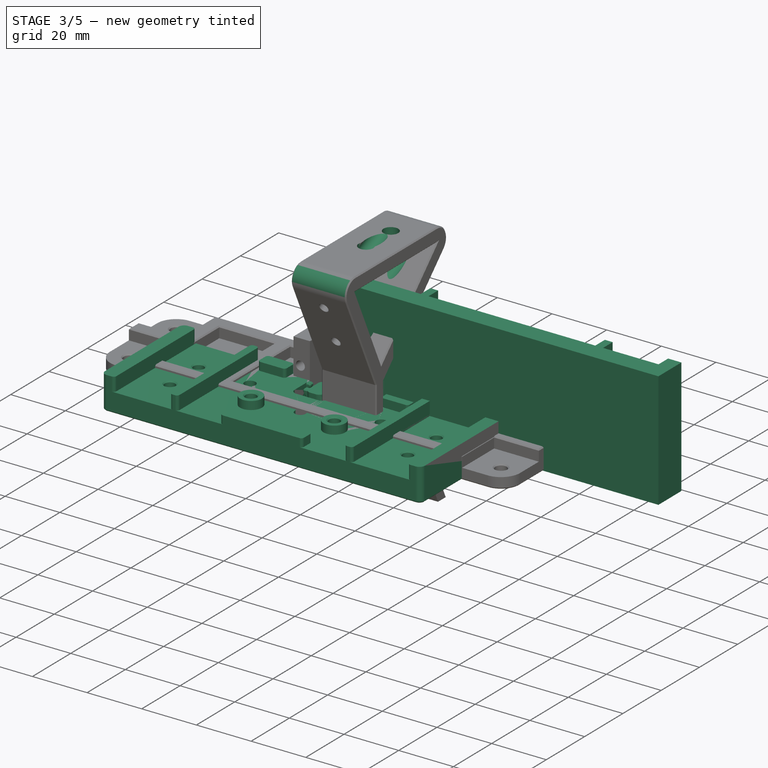
[diagram: stage 3 of 5 — iso view after this stage's code; geometry added in this stage tinted green]
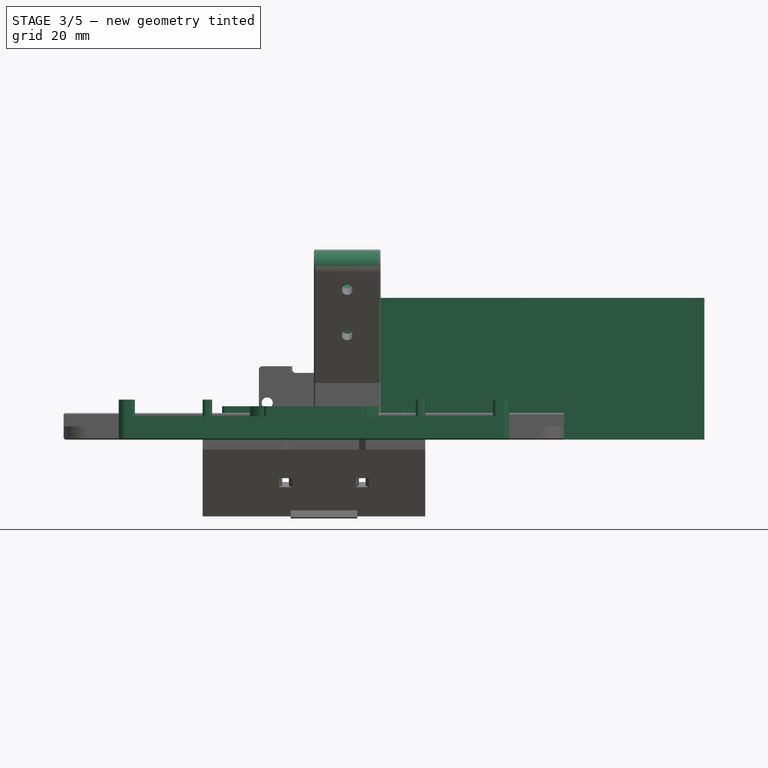
[diagram: stage 3 of 5 — front view after this stage's code; geometry added in this stage tinted green]
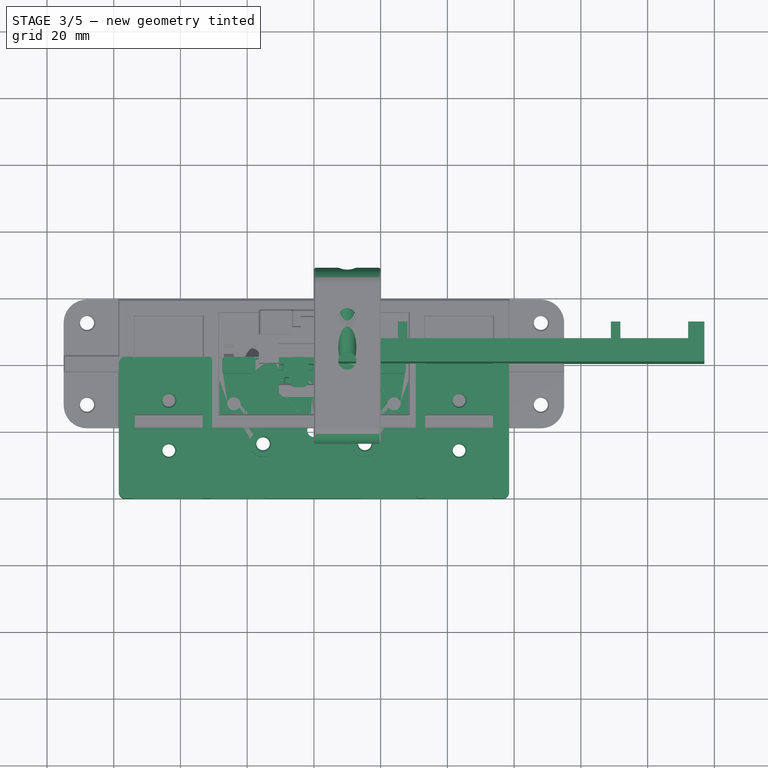
[diagram: stage 3 of 5 — top view after this stage's code; geometry added in this stage tinted green]
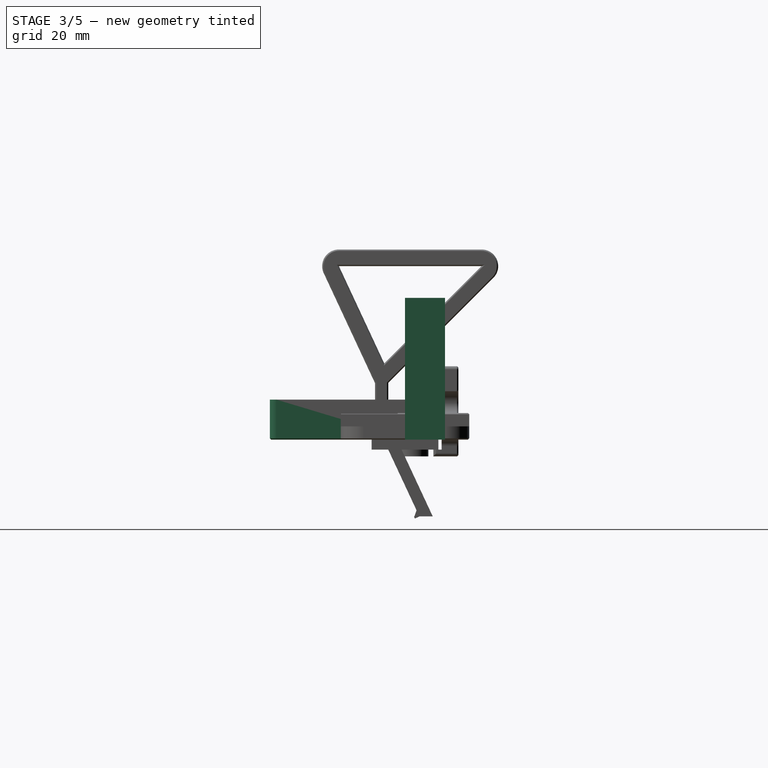
[diagram: stage 3 of 5 — right view after this stage's code; geometry added in this stage tinted green]
FEATURE [Sketcher::SketchObject] Sketch017
  FullyConstrained = true
  MapMode = 5
  Placement = pos=(0,0,0) rot=(1,0,0;1.5708rad)
  Support = -> [XZ_Plane005]
  sketch-geometry (4):
    g0: LineSegment StartX=0 StartY=0 StartZ=0 EndX=117 EndY=0 EndZ=0
    g1: LineSegment StartX=117 StartY=0 StartZ=0 EndX=117 EndY=42.5 EndZ=0
    g2: LineSegment StartX=117 StartY=42.5 StartZ=0 EndX=0 EndY=42.5 EndZ=0
    g3: LineSegment StartX=0 StartY=42.5 StartZ=0 EndX=0 EndY=0 EndZ=0
  constraints (11):
    c: Coincident(g0,g1)
    c: Coincident(g1,g2)
    c: Coincident(g2,g3)
    c: Coincident(g3,g0)
    c: Horizontal(g0)
    c: Horizontal(g2)
    c: Vertical(g1)
    c: Vertical(g3)
    c: Coincident(g0,g-1)
    c: DistanceX(g2,g2) = 117
    c: DistanceY(g3,g3) = 42.5
FEATURE [PartDesign::Pad] Pad006
  Direction = (1,1,1)
  Length = 7
  Length2 = 100
  Placement = pos=(0,0,0) rot=(1,0,0;1.5708rad)
  Profile = -> Sketch017
  Reversed = true
  Type = 0
FEATURE [Sketcher::SketchObject] Sketch018
  ExternalGeometry = -> [Pad006]
  FullyConstrained = true
  MapMode = 5
  Placement = pos=(0,7,1.5e-15) rot=(-1,0,0;1.5708rad)
  Support = -> [Pad006]
  sketch-geometry (16):
    g0: LineSegment StartX=0 StartY=0 StartZ=0 EndX=4.85 EndY=0 EndZ=0
    g1: LineSegment StartX=4.85 StartY=0 StartZ=0 EndX=4.85 EndY=-42.5 EndZ=0
    g2: LineSegment StartX=4.85 StartY=-42.5 StartZ=0 EndX=0 EndY=-42.5 EndZ=0
    g3: LineSegment StartX=0 StartY=-42.5 StartZ=0 EndX=0 EndY=0 EndZ=0
    g4: LineSegment StartX=117 StartY=0 StartZ=0 EndX=112.15 EndY=0 EndZ=0
    g5: LineSegment StartX=112.15 StartY=0 StartZ=0 EndX=112.15 EndY=-42.5 EndZ=0
    g6: LineSegment StartX=112.15 StartY=-42.5 StartZ=0 EndX=117 EndY=-42.5 EndZ=0
    g7: LineSegment StartX=117 StartY=-42.5 StartZ=0 EndX=117 EndY=0 EndZ=0
    g8: LineSegment StartX=25.15 StartY=0 StartZ=0 EndX=28 EndY=0 EndZ=0
    g9: LineSegment StartX=28 StartY=0 StartZ=0 EndX=28 EndY=-42.5 EndZ=0
    g10: LineSegment StartX=28 StartY=-42.5 StartZ=0 EndX=25.15 EndY=-42.5 EndZ=0
    g11: LineSegment StartX=25.15 StartY=-42.5 StartZ=0 EndX=25.15 EndY=0 EndZ=0
    g12: LineSegment StartX=91.85 StartY=0 StartZ=0 EndX=89 EndY=0 EndZ=0
    g13: LineSegment StartX=89 StartY=0 StartZ=0 EndX=89 EndY=-42.5 EndZ=0
    g14: LineSegment StartX=89 StartY=-42.5 StartZ=0 EndX=91.85 EndY=-42.5 EndZ=0
    g15: LineSegment StartX=91.85 StartY=-42.5 StartZ=0 EndX=91.85 EndY=0 EndZ=0
  constraints (46):
    c: Coincident(g0,g1)
    c: Coincident(g1,g2)
    c: Coincident(g2,g3)
    c: Coincident(g3,g0)
    c: Horizontal(g0)
    c: Horizontal(g2)
    c: Vertical(g1)
    c: Vertical(g3)
    c: Coincident(g0,g-1)
    c: Coincident(g4,g5)
    c: Coincident(g5,g6)
    c: Coincident(g6,g7)
    c: Coincident(g7,g4)
    c: Horizontal(g4)
    c: Horizontal(g6)
    c: Vertical(g5)
    c: Vertical(g7)
    c: DistanceX(g0,g0) = 4.85
    c: DistanceX(g4,g4) = 4.85
    c: DistanceY(g5,g5) = 42.5
    c: Coincident(g4,g-4)
    c: DistanceY(g3,g3) = 42.5
    c: Coincident(g8,g9)
    c: Coincident(g9,g10)
    c: Coincident(g10,g11)
    c: Coincident(g11,g8)
    c: Horizontal(g8)
    c: Horizontal(g10)
    c: Vertical(g9)
    c: Vertical(g11)
    c: PointOnObject(g8,g-1)
    c: Coincident(g12,g13)
    c: Coincident(g13,g14)
    c: Coincident(g14,g15)
    c: Coincident(g15,g12)
    c: Horizontal(g12)
    c: Horizontal(g14)
    c: Vertical(g13)
    c: Vertical(g15)
    c: PointOnObject(g12,g-1)
    c: DistanceX(g8,g8) = 2.85
    c: DistanceX(g12,g12) = 2.85
    c: DistanceY(g9,g9) = 42.5
    c: DistanceY(g13,g13) = 42.5
    c: DistanceX(g0,g8) = 20.3
    c: DistanceX(g12,g4) = 20.3
FEATURE [PartDesign::Pad] Pad007
  BaseFeature = -> Pad006
  Direction = (1,1,1)
  Length = 5
  Length2 = 100
  Placement = pos=(0,0,0) rot=(1,0,0;1.5708rad)
  Profile = -> Sketch018
  Type = 0
FEATURE [PartDesign::Body] Body004004003  label="pcb-mounter"
  Group = -> [Sketch017,Pad006,Sketch018,Pad007,Sketch019,Pocket006,Sketch020,Pad008,Sketch021,Pocket007,Sketch022,Pocket008,Fillet005006,Fillet005007,Chamfer004,Sketch023,Pocket009,Fillet005008]
  Origin = -> Origin005
  Placement = pos=(-58.5,-16.7,20) rot=(1,0,0;0.436332rad)
  Tip = -> Fillet005008
FEATURE [Part::Box] Box001  label="Cube001"
  AttacherType = Attacher::AttachEngine3D
  Height = 3
  Length = 2.5
  Width = 2
FEATURE [Part::Chamfer] Chamfer005
  Base = -> Box001
  Edges = 1 edges: [Edge8 r1=2 r2=1.5]
FEATURE [Part::Chamfer] Chamfer006
  Base = -> Chamfer005
  Edges = 1 edges r=0.4: [Edge4]
FEATURE [Part::Chamfer] Chamfer007
  Base = -> Chamfer006
  Edges = 8 edges r=0.4: [Edge1,Edge3,Edge5,Edge6,Edge7,Edge10,Edge12,Edge14]
FEATURE [Part::Feature] Chamfer007001
  Placement = pos=(5,-2,0) rot=(0,0,1;3.14159rad)
  shape: bbox 2.5 x 2 x 3 mm, 16 faces (baked)
FEATURE [Part::MultiFuse] Fusion003  label="cable-grip"
  Shapes = -> [Chamfer007001,Chamfer007]
FEATURE [Part::Feature] Body004004003001  label="pcb-mounter001"
  Placement = pos=(-58.5,2,-8e-15) rot=(1,0,0;1.5708rad)
  shape: bbox 117 x 42.5 x 12 mm, 110 faces (baked)
FEATURE [Part::Feature] Fusion003001  label="cable-grip001"
  Placement = pos=(-2.5,-2,4) rot=(0,0,1;0rad)
  shape: bbox 5 x 6 x 3 mm, 32 faces, 2 solids (baked)
FEATURE [Part::Feature] Fusion003003  label="cable-grip003"
  Placement = pos=(-6.5,-4,4) rot=(0,0,1;3.14159rad)
  shape: bbox 5 x 6 x 3 mm, 32 faces, 2 solids (baked)
FEATURE [Part::MultiFuse] Fusion003004
  Refine = true
  Shapes = -> [Fusion003003,Fusion003001,Body004004003001]
FEATURE [Part::Feature] Body004004002001  label="back"
  Placement = pos=(-53.5,0,4) rot=(0,0,1;0rad)
  shape: bbox 20 x 56.96 x 82 mm, 84 faces (baked)
FEATURE [Sketcher::SketchObject] Sketch024
  FullyConstrained = true
  MapMode = 5
  Placement = pos=(-1.1e-15,1.8e-15,4) rot=(0,0,-1;1.5708rad)
  Support = -> [Pocket001]
  sketch-geometry (1):
    g0: Circle CenterX=0 CenterY=10 CenterZ=0 NormalX=0 NormalY=0 NormalZ=1 AngleXU=0 Radius=1.65
  constraints (3):
    c: PointOnObject(g0,g-2)
    c: DistanceY(g-1,g0) = 10
    c: Radius(g0) = 1.65
FEATURE [PartDesign::Pocket] Pocket010
  BaseFeature = -> Pocket001
  Length = 5
  Length2 = 100
  Placement = pos=(0,0,0) rot=(0.57735,0.57735,0.57735;2.0944rad)
  Profile = -> Sketch024
  Type = 1
FEATURE [PartDesign::Fillet] Fillet
  Base = -> Pocket010 [Edge39,Edge38]
  BaseFeature = -> Pocket010
  Placement = pos=(0,0,0) rot=(0.57735,0.57735,0.57735;2.0944rad)
  Radius = 5
  SupportTransform = false
FEATURE [Sketcher::SketchObject] Sketch025
  FullyConstrained = true
  MapMode = 5
  Placement = pos=(-1.1e-15,1.8e-15,4) rot=(0,0,-1;1.5708rad)
  Support = -> [Fillet]
  sketch-geometry (1):
    g0: Circle CenterX=0 CenterY=10 CenterZ=0 NormalX=0 NormalY=0 NormalZ=1 AngleXU=0 Radius=2.7
  constraints (3):
    c: PointOnObject(g0,g-2)
    c: DistanceY(g-1,g0) = 10
    c: Radius(g0) = 2.7
FEATURE [PartDesign::Pocket] Pocket011
  BaseFeature = -> Fillet
  Length = 5
  Length2 = 100
  Placement = pos=(0,0,0) rot=(0.57735,0.57735,0.57735;2.0944rad)
  Profile = -> Sketch025
  Reversed = true
  Type = 1
FEATURE [Sketcher::SketchObject] Sketch026
  FullyConstrained = true
  MapMode = 5
  Placement = pos=(1.2e-15,3.65037,1.7022) rot=(-0.473306,-0.473306,-0.742942;1.86366rad)
  Support = -> [Pocket011]
  sketch-geometry (2):
    g0: Circle CenterX=35 CenterY=10 CenterZ=0 NormalX=0 NormalY=0 NormalZ=1 AngleXU=0 Radius=2.7
    g1: Circle CenterX=50 CenterY=10 CenterZ=0 NormalX=0 NormalY=0 NormalZ=1 AngleXU=0 Radius=2.7
  constraints (6):
    c: Horizontal(g1,g0)
    c: Equal(g0,g1)
    c: Radius(g1) = 2.7
    c: DistanceY(g-1,g0) = 10
    c: DistanceX(g-1,g0) = 35
    c: DistanceX(g0,g1) = 15
FEATURE [PartDesign::Pocket] Pocket012
  BaseFeature = -> Pocket011
  Length = 5
  Length2 = 100
  Placement = pos=(0,0,0) rot=(0.57735,0.57735,0.57735;2.0944rad)
  Profile = -> Sketch026
  Reversed = true
  Type = 1
FEATURE [Sketcher::SketchObject] Sketch027
  FullyConstrained = true
  MapMode = 5
  Placement = pos=(-1.6e-14,2.51e-14,57) rot=(0,0,-1;1.5708rad)
  Support = -> [Pocket012]
  sketch-geometry (1):
    g0: Circle CenterX=-13 CenterY=10 CenterZ=0 NormalX=0 NormalY=0 NormalZ=1 AngleXU=0 Radius=2.7
  constraints (3):
    c: Radius(g0) = 2.7
    c: DistanceY(g-1,g0) = 10
    c: DistanceX(g0,g-1) = 13
FEATURE [PartDesign::Pocket] Pocket013
  BaseFeature = -> Pocket012
  Length = 0
  Length2 = 100
  Placement = pos=(0,0,0) rot=(0.57735,0.57735,0.57735;2.0944rad)
  Profile = -> Sketch027
  Type = 3
  UpToFace = -> Pocket012 [Face14]
FEATURE [PartDesign::Chamfer] Chamfer007002
  Angle = 45
  Base = -> Pocket013 [Face1,Face18,Edge86,Edge84,Edge83]
  BaseFeature = -> Pocket013
  ChamferType = 0
  FlipDirection = false
  Placement = pos=(0,0,0) rot=(0.57735,0.57735,0.57735;2.0944rad)
  Size = 0.4
  Size2 = 1
  SupportTransform = false
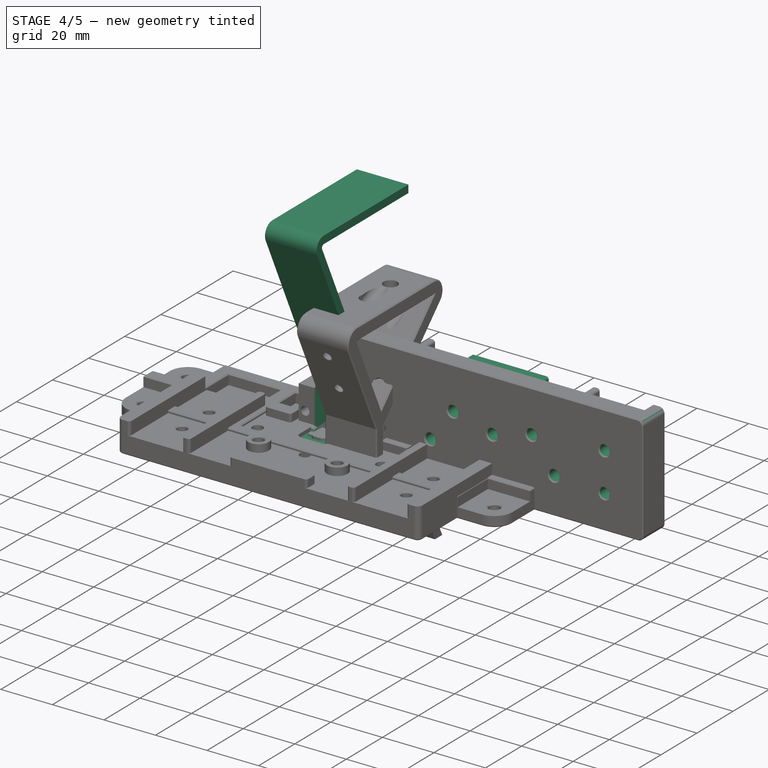
[diagram: stage 4 of 5 — iso view after this stage's code; geometry added in this stage tinted green]
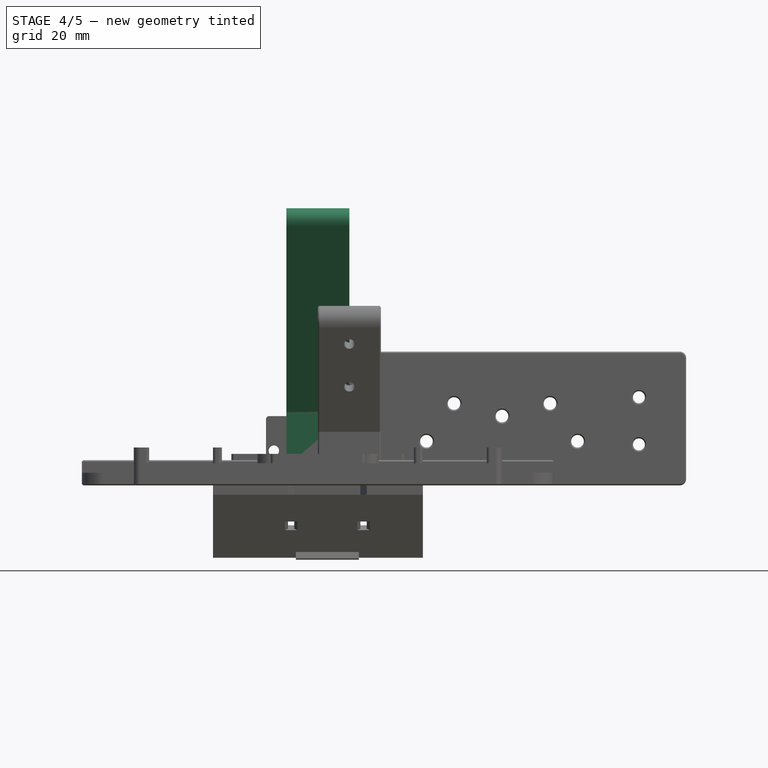
[diagram: stage 4 of 5 — front view after this stage's code; geometry added in this stage tinted green]
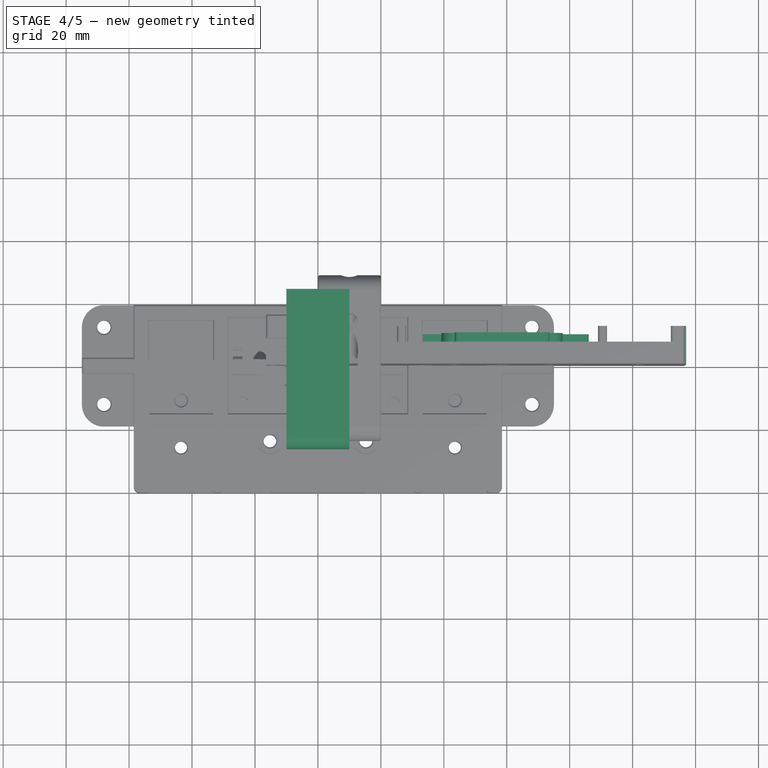
[diagram: stage 4 of 5 — top view after this stage's code; geometry added in this stage tinted green]
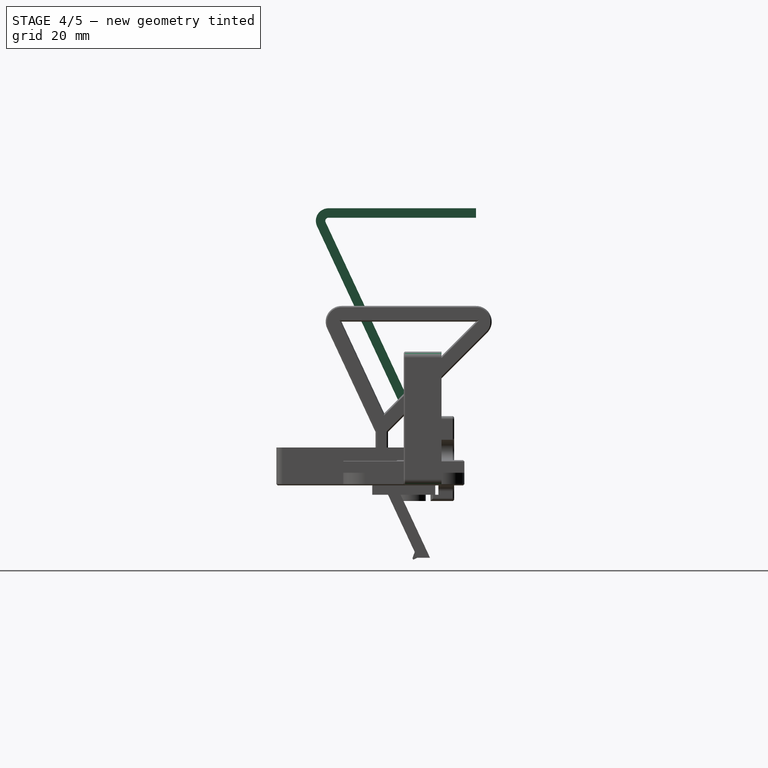
[diagram: stage 4 of 5 — right view after this stage's code; geometry added in this stage tinted green]
FEATURE [PartDesign::Body] Body
  Group = -> [Sketch,Pad,Sketch001,Pocket,Chamfer]
  Origin = -> Origin
  Placement = pos=(0,-9,-3) rot=(0,0,1;0rad)
  Tip = -> Chamfer
FEATURE [Sketcher::SketchObject] Sketch002
  FullyConstrained = true
  MapMode = 5
  Placement = pos=(0,0,0) rot=(1,0,0;1.5708rad)
  Support = -> [XZ_Plane001]
  sketch-geometry (4):
    g0: LineSegment StartX=-10 StartY=6 StartZ=0 EndX=10 EndY=6 EndZ=0
    g1: LineSegment StartX=10 StartY=6 StartZ=0 EndX=10 EndY=141 EndZ=0
    g2: LineSegment StartX=10 StartY=141 StartZ=0 EndX=-10 EndY=141 EndZ=0
    g3: LineSegment StartX=-10 StartY=141 StartZ=0 EndX=-10 EndY=6 EndZ=0
  constraints (12):
    c: Coincident(g0,g1)
    c: Coincident(g1,g2)
    c: Coincident(g2,g3)
    c: Coincident(g3,g0)
    c: Horizontal(g0)
    c: Horizontal(g2)
    c: Vertical(g1)
    c: Vertical(g3)
    c: DistanceX(g2,g2) = 20
    c: DistanceX(g2,g-1) = 10
    c: DistanceY(g-1,g0) = 6
    c: DistanceY(g3,g3) = 135
FEATURE [PartDesign::Pad] Pad001
  Direction = (1,1,1)
  Length = 3
  Length2 = 100
  Placement = pos=(0,0,0) rot=(1,0,0;1.5708rad)
  Profile = -> Sketch002
  Reversed = true
  Type = 0
FEATURE [Sketcher::SketchObject] Sketch003
  ExternalGeometry = -> [Pad001]
  FullyConstrained = false
  MapMode = 5
  Placement = pos=(0,0,0) rot=(1,0,0;1.5708rad)
  Support = -> [XZ_Plane001]
  sketch-geometry (1):
    g0: LineSegment StartX=-57.9606 StartY=23 StartZ=0 EndX=72.0606 EndY=23 EndZ=0
  constraints (2):
    c: Horizontal(g0)
    c: DistanceY(g-3,g0) = 17
FEATURE [PartDesign::FeaturePython] Fold  # WARN: FeaturePython — macro-defined, semantics opaque (R4)
  BaseFeature = -> Pad001
  BendLine = -> Sketch003
  Position = 0
  angle = 25
  baseObject = -> Pad001 [Face5]
  invert = false
  invertbend = false
  kfactor = 0.5
  radius = 1
  unfold = false
FEATURE [Sketcher::SketchObject] Sketch004
  ExternalGeometry = -> [Fold]
  FullyConstrained = false
  MapMode = 5
  Placement = pos=(0,11.6133,5.41539) rot=(0,0.5373,0.843391;3.14159rad)
  Support = -> [Fold]
  sketch-geometry (1):
    g0: LineSegment StartX=-71.4288 StartY=86.2677 StartZ=0 EndX=68.1888 EndY=86.2677 EndZ=0
  constraints (2):
    c: Horizontal(g0)
    c: DistanceY(g-3,g0) = 65
FEATURE [PartDesign::FeaturePython] Fold001  # WARN: FeaturePython — macro-defined, semantics opaque (R4)
  BaseFeature = -> Fold
  BendLine = -> Sketch004
  Position = 0
  angle = 115
  baseObject = -> Fold [Face13]
  invert = false
  invertbend = false
  kfactor = 0.5
  radius = 1
  unfold = false
FEATURE [Part::Box] Box  label="Cube"
  AttacherType = Attacher::AttachEngine3D
  Height = 3
  Length = 20
  Placement = pos=(-10,-9.85,3) rot=(0,0,1;0rad)
  Width = 24.7
FEATURE [Sketcher::SketchObject] Sketch019
  FullyConstrained = true
  MapMode = 5
  Placement = pos=(0,7,1.5e-15) rot=(-1,0,0;1.5708rad)
  Support = -> [Pad007]
  sketch-geometry (4):
    g0: Circle CenterX=15 CenterY=-13 CenterZ=0 NormalX=0 NormalY=0 NormalZ=1 AngleXU=0 Radius=1.9
    g1: Circle CenterX=15 CenterY=-28 CenterZ=0 NormalX=0 NormalY=0 NormalZ=1 AngleXU=0 Radius=1.9
    g2: Circle CenterX=102 CenterY=-13 CenterZ=0 NormalX=0 NormalY=0 NormalZ=1 AngleXU=0 Radius=1.9
    g3: Circle CenterX=102 CenterY=-28 CenterZ=0 NormalX=0 NormalY=0 NormalZ=1 AngleXU=0 Radius=1.9
  constraints (12):
    c: Horizontal(g0,g2)
    c: Horizontal(g1,g3)
    c: Vertical(g1,g0)
    c: Vertical(g3,g2)
    c: DistanceX(g-1,g0) = 15
    c: DistanceY(g0,g-1) = 13
    c: DistanceY(g1,g0) = 15
    c: Radius(g0) = 1.9
    c: Radius(g1) = 1.9
    c: Radius(g2) = 1.9
    c: Radius(g3) = 1.9
    c: DistanceX(g0,g2) = 87
FEATURE [PartDesign::Pocket] Pocket006
  BaseFeature = -> Pad007
  Length = 0
  Length2 = 100
  Placement = pos=(0,0,0) rot=(1,0,0;1.5708rad)
  Profile = -> Sketch019
  Type = 3
  UpToFace = -> Pad007 [Face4]
FEATURE [Sketcher::SketchObject] Sketch020
  FullyConstrained = true
  MapMode = 5
  Placement = pos=(0,7,1.5e-15) rot=(-1,0,0;1.5708rad)
  Support = -> [Pocket006]
  sketch-geometry (14):
    g0: Circle CenterX=43.25 CenterY=-26 CenterZ=0 NormalX=0 NormalY=0 NormalZ=1 AngleXU=0 Radius=4
    g1: Circle CenterX=73.75 CenterY=-26 CenterZ=0 NormalX=0 NormalY=0 NormalZ=1 AngleXU=0 Radius=4
    g2: LineSegment StartX=43.5 StartY=-37.5 StartZ=0 EndX=73.5 EndY=-37.5 EndZ=0
    g3: LineSegment StartX=73.5 StartY=-37.5 StartZ=0 EndX=73.5 EndY=-42.5 EndZ=0
    g4: LineSegment StartX=73.5 StartY=-42.5 StartZ=0 EndX=43.5 EndY=-42.5 EndZ=0
    g5: LineSegment StartX=43.5 StartY=-42.5 StartZ=0 EndX=43.5 EndY=-37.5 EndZ=0
    g6: LineSegment StartX=31 StartY=-9e-16 StartZ=0 EndX=41 EndY=-9e-16 EndZ=0
    g7: LineSegment StartX=41 StartY=-9e-16 StartZ=0 EndX=41 EndY=-5 EndZ=0
    g8: LineSegment StartX=41 StartY=-5 StartZ=0 EndX=31 EndY=-5 EndZ=0
    g9: LineSegment StartX=31 StartY=-5 StartZ=0 EndX=31 EndY=-9e-16 EndZ=0
    g10: LineSegment StartX=76 StartY=-9e-16 StartZ=0 EndX=86 EndY=-9e-16 EndZ=0
    g11: LineSegment StartX=86 StartY=-9e-16 StartZ=0 EndX=86 EndY=-5 EndZ=0
    g12: LineSegment StartX=86 StartY=-5 StartZ=0 EndX=76 EndY=-5 EndZ=0
    g13: LineSegment StartX=76 StartY=-5 StartZ=0 EndX=76 EndY=-9e-16 EndZ=0
  constraints (42):
    c: DistanceX(g0,g1) = 30.5
    c: Horizontal(g0,g1)
    c: DistanceX(g-1,g0) = 43.25
    c: DistanceY(g0,g-1) = 26
    c: Radius(g0) = 4
    c: Radius(g1) = 4
    c: Coincident(g2,g3)
    c: Coincident(g3,g4)
    c: Coincident(g4,g5)
    c: Coincident(g5,g2)
    c: Horizontal(g2)
    c: Horizontal(g4)
    c: Vertical(g3)
    c: Vertical(g5)
    c: DistanceX(g2,g2) = 30
    c: DistanceY(g5,g5) = 5
    c: DistanceX(g0,g2) = 0.25
    c: DistanceY(g2,g0) = 11.5
    c: Coincident(g6,g7)
    c: Coincident(g7,g8)
    c: Coincident(g8,g9)
    c: Coincident(g9,g6)
    c: Horizontal(g6)
    c: Horizontal(g8)
    c: Vertical(g7)
    c: Vertical(g9)
    c: Coincident(g10,g11)
    c: Coincident(g11,g12)
    c: Coincident(g12,g13)
    c: Coincident(g13,g10)
    c: Horizontal(g10)
    c: Horizontal(g12)
    c: Vertical(g11)
    c: Vertical(g13)
    c: DistanceX(g6,g6) = 10
    c: DistanceX(g10,g10) = 10
    c: DistanceY(g9,g9) = 5
    c: Horizontal(g6,g10)
    c: Horizontal(g7,g12)
    c: DistanceY(g0,g7) = 21
    c: DistanceX(g7,g0) = 2.25
    c: DistanceX(g1,g12) = 2.25
FEATURE [PartDesign::Pad] Pad008
  BaseFeature = -> Pocket006
  Direction = (1,1,1)
  Length = 3
  Length2 = 100
  Placement = pos=(0,0,0) rot=(1,0,0;1.5708rad)
  Profile = -> Sketch020
  Type = 0
FEATURE [Sketcher::SketchObject] Sketch021
  ExternalGeometry = -> [Pad008]
  FullyConstrained = true
  MapMode = 5
  Placement = pos=(-7e-16,10,1.3e-15) rot=(-1,0,0;1.5708rad)
  Support = -> [Pad008]
  sketch-geometry (2):
    g0: Circle CenterX=43.25 CenterY=-26 CenterZ=0 NormalX=0 NormalY=0 NormalZ=1 AngleXU=0 Radius=2
    g1: Circle CenterX=73.75 CenterY=-26 CenterZ=0 NormalX=0 NormalY=0 NormalZ=1 AngleXU=0 Radius=2
  constraints (4):
    c: Coincident(g0,g-3)
    c: Coincident(g1,g-4)
    c: Radius(g0) = 2
    c: Radius(g1) = 2
FEATURE [PartDesign::Pocket] Pocket007
  BaseFeature = -> Pad008
  Length = 5
  Length2 = 100
  Placement = pos=(0,0,0) rot=(1,0,0;1.5708rad)
  Profile = -> Sketch021
  Type = 1
FEATURE [Sketcher::SketchObject] Sketch022
  FullyConstrained = true
  MapMode = 5
  Placement = pos=(0,7,1.5e-15) rot=(-1,0,0;1.5708rad)
  Support = -> [Pocket007]
  sketch-geometry (4):
    g0: GeomPoint X=58.5 Y=-14 Z=0
    g1: Circle CenterX=34.5 CenterY=-14 CenterZ=0 NormalX=0 NormalY=0 NormalZ=1 AngleXU=0 Radius=2
    g2: Circle CenterX=82.5 CenterY=-14 CenterZ=0 NormalX=0 NormalY=0 NormalZ=1 AngleXU=0 Radius=2
    g3: Circle CenterX=58.5 CenterY=-22 CenterZ=0 NormalX=0 NormalY=0 NormalZ=1 AngleXU=0 Radius=2
  constraints (11):
    c: DistanceX(g-1,g0) = 58.5
    c: Horizontal(g1,g0)
    c: Horizontal(g0,g2)
    c: Radius(g1) = 2
    c: Radius(g2) = 2
    c: DistanceX(g1,g0) = 24
    c: DistanceX(g0,g2) = 24
    c: DistanceY(g1,g-1) = 14
    c: Radius(g3) = 2
    c: Vertical(g3,g0)
    c: DistanceY(g3,g0) = 8
FEATURE [PartDesign::Pocket] Pocket008
  BaseFeature = -> Pocket007
  Length = 0
  Length2 = 100
  Placement = pos=(0,0,0) rot=(1,0,0;1.5708rad)
  Profile = -> Sketch022
  Refine = true
  Type = 3
  UpToFace = -> Pocket007 [Face4]
FEATURE [PartDesign::Fillet] Fillet005006
  Base = -> Pocket008 [Edge15,Edge1,Edge18,Edge2]
  BaseFeature = -> Pocket008
  Placement = pos=(0,0,0) rot=(1,0,0;1.5708rad)
  Radius = 2
  Refine = true
  SupportTransform = false
FEATURE [PartDesign::Fillet] Fillet005007
  Base = -> Fillet005006 [Edge97,Edge95,Edge94,Edge100,Edge109,Edge108,Edge111,Edge98,Edge106,Edge102,Edge104,Edge113,Edge63,Edge78,Edge85,Edge90,Edge81,Edge71,Edge62,Edge79,Edge84,Edge89,Edge82,Edge70]
  BaseFeature = -> Fillet005006
  Placement = pos=(0,0,0) rot=(1,0,0;1.5708rad)
  Radius = 1
  SupportTransform = false
FEATURE [PartDesign::Chamfer] Chamfer004
  Angle = 45
  Base = -> Fillet005007 [Face15,Edge120,Edge119,Edge14,Edge13,Edge200,Edge196]
  BaseFeature = -> Fillet005007
  ChamferType = 0
  FlipDirection = false
  Placement = pos=(0,0,0) rot=(1,0,0;1.5708rad)
  Size = 0.4
  Size2 = 1
  SupportTransform = false
FEATURE [Sketcher::SketchObject] Sketch023
  FullyConstrained = true
  MapMode = 5
  Placement = pos=(0,7,1.5e-15) rot=(-1,0,0;1.5708rad)
  Support = -> [Chamfer004]
  sketch-geometry (9):
    g0: GeomPoint X=58.5 Y=0 Z=0
    g1: LineSegment StartX=48 StartY=0 StartZ=0 EndX=51 EndY=0 EndZ=0
    g2: LineSegment StartX=51 StartY=0 StartZ=0 EndX=51 EndY=-9 EndZ=0
    g3: LineSegment StartX=51 StartY=-9 StartZ=0 EndX=57 EndY=-9 EndZ=0
    g4: LineSegment StartX=57 StartY=-9 StartZ=0 EndX=57 EndY=0 EndZ=0
    g5: LineSegment StartX=57 StartY=0 StartZ=0 EndX=60 EndY=0 EndZ=0
    g6: LineSegment StartX=60 StartY=0 StartZ=0 EndX=60 EndY=-12 EndZ=0
    g7: LineSegment StartX=60 StartY=-12 StartZ=0 EndX=48 EndY=-12 EndZ=0
    g8: LineSegment StartX=48 StartY=-12 StartZ=0 EndX=48 EndY=0 EndZ=0
  constraints (26):
    c: PointOnObject(g0,g-1)
    c: DistanceX(g-1,g0) = 58.5
    c: PointOnObject(g1,g-1)
    c: PointOnObject(g1,g-1)
    c: Coincident(g1,g2)
    c: Vertical(g2)
    c: Coincident(g2,g3)
    c: Horizontal(g3)
    c: Coincident(g3,g4)
    c: Vertical(g4)
    c: Coincident(g4,g5)
    c: PointOnObject(g5,g-1)
    c: Horizontal(g5)
    c: Coincident(g5,g6)
    c: Vertical(g6)
    c: Coincident(g6,g7)
    c: Horizontal(g7)
    c: Coincident(g7,g8)
    c: Coincident(g8,g1)
    c: Vertical(g8)
    c: DistanceX(g5,g5) = 3
    c: DistanceX(g1,g1) = 3
    c: DistanceY(g6,g3) = 3
    c: DistanceX(g4,g0) = 1.5
    c: DistanceY(g6,g6) = 12
    c: DistanceX(g3,g3) = 6
FEATURE [PartDesign::Pocket] Pocket009
  BaseFeature = -> Chamfer004
  Length = 6
  Length2 = 100
  Placement = pos=(0,0,0) rot=(1,0,0;1.5708rad)
  Profile = -> Sketch023
  Type = 0
FEATURE [PartDesign::Fillet] Fillet005008
  Base = -> Pocket009 [Edge203,Edge191,Edge202,Edge198,Edge68,Edge66,Edge64,Edge62]
  BaseFeature = -> Pocket009
  Placement = pos=(0,0,0) rot=(1,0,0;1.5708rad)
  Radius = 2
  SupportTransform = false
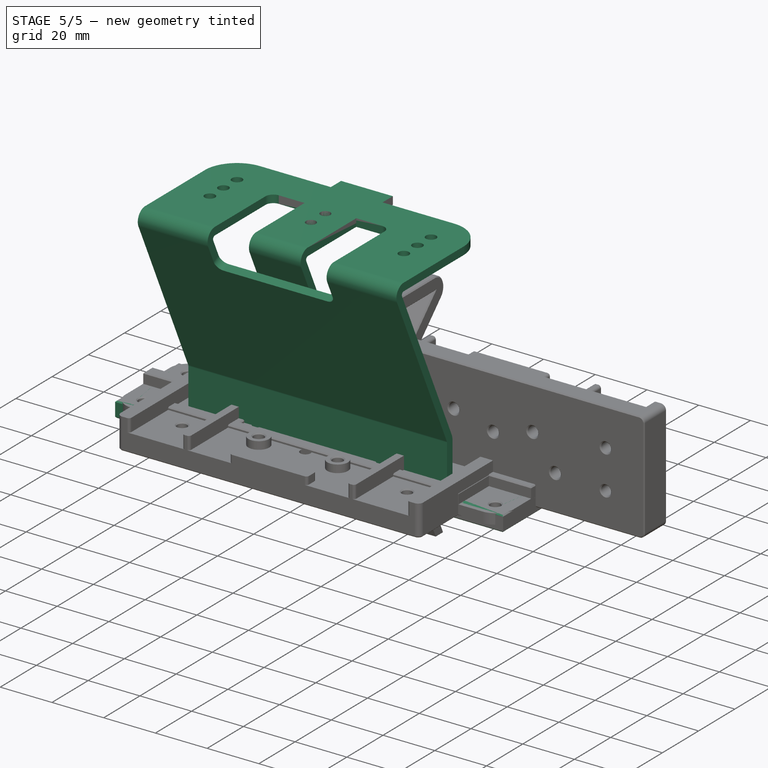
[diagram: stage 5 of 5 — iso view after this stage's code; geometry added in this stage tinted green]
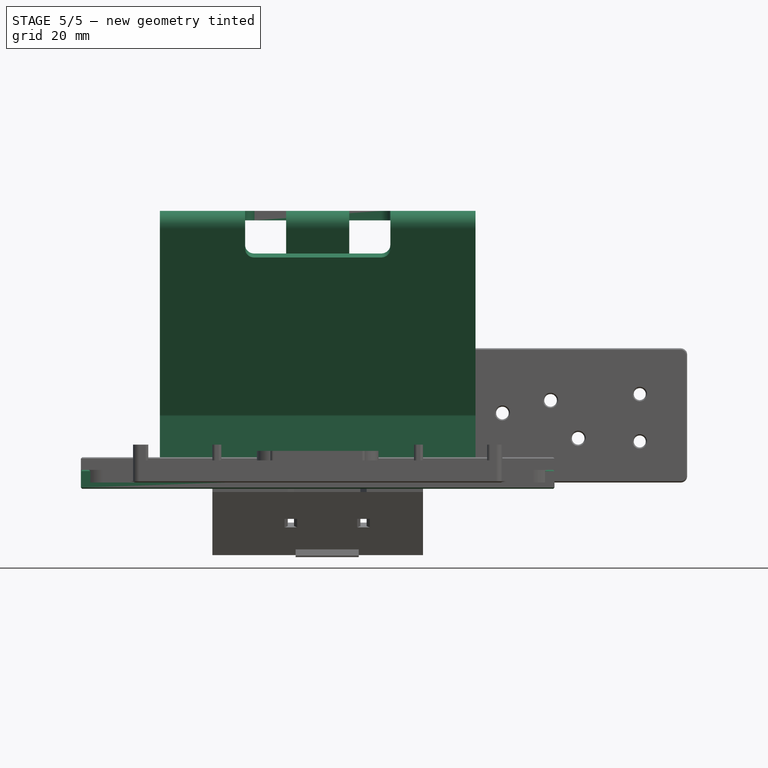
[diagram: stage 5 of 5 — front view after this stage's code; geometry added in this stage tinted green]
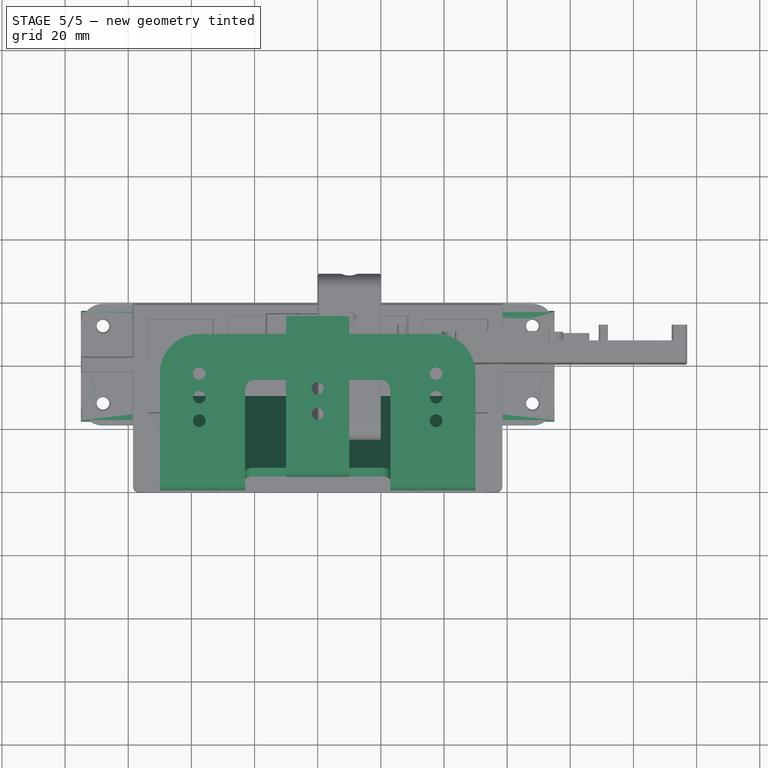
[diagram: stage 5 of 5 — top view after this stage's code; geometry added in this stage tinted green]
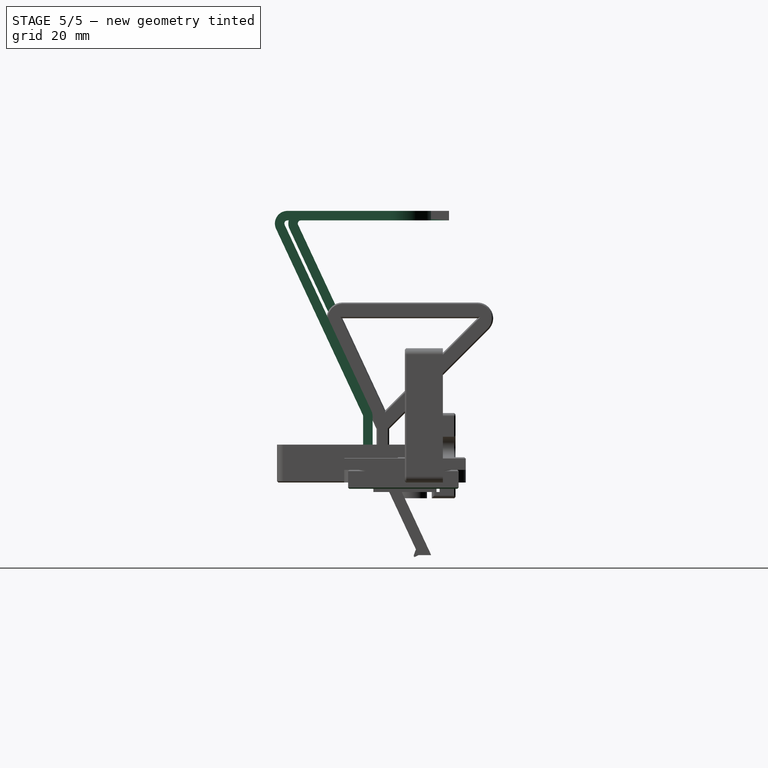
[diagram: stage 5 of 5 — right view after this stage's code; geometry added in this stage tinted green]
FEATURE [Sketcher::SketchObject] Sketch
  FullyConstrained = true
  MapMode = 5
  Support = -> [XY_Plane]
  sketch-geometry (14):
    g0: Circle CenterX=-68 CenterY=17.25 CenterZ=0 NormalX=0 NormalY=0 NormalZ=1 AngleXU=0 Radius=2
    g1: Circle CenterX=68 CenterY=17.25 CenterZ=0 NormalX=0 NormalY=0 NormalZ=1 AngleXU=0 Radius=2
    g2: Circle CenterX=-68 CenterY=-7.25 CenterZ=0 NormalX=0 NormalY=0 NormalZ=1 AngleXU=0 Radius=2
    g3: Circle CenterX=68 CenterY=-7.25 CenterZ=0 NormalX=0 NormalY=0 NormalZ=1 AngleXU=0 Radius=2
    g4: LineSegment StartX=-75 StartY=22 StartZ=0 EndX=75 EndY=22 EndZ=0
    g5: LineSegment StartX=75 StartY=22 StartZ=0 EndX=75 EndY=-13 EndZ=0
    g6: LineSegment StartX=75 StartY=-13 StartZ=0 EndX=-75 EndY=-13 EndZ=0
    g7: LineSegment StartX=-75 StartY=-13 StartZ=0 EndX=-75 EndY=22 EndZ=0
    g8: LineSegment StartX=-50 StartY=-1.05 StartZ=0 EndX=50 EndY=-1.05 EndZ=0
    g9: LineSegment StartX=50 StartY=-1.05 StartZ=0 EndX=50 EndY=-4.25 EndZ=0
    g10: LineSegment StartX=50 StartY=-4.25 StartZ=0 EndX=-50 EndY=-4.25 EndZ=0
    g11: LineSegment StartX=-50 StartY=-4.25 StartZ=0 EndX=-50 EndY=-1.05 EndZ=0
    g12: Circle CenterX=-40 CenterY=5 CenterZ=0 NormalX=0 NormalY=0 NormalZ=1 AngleXU=0 Radius=2
    g13: Circle CenterX=40 CenterY=5 CenterZ=0 NormalX=0 NormalY=0 NormalZ=1 AngleXU=0 Radius=2
  constraints (42):
    c: Horizontal(g1,g0)
    c: Horizontal(g2,g3)
    c: Vertical(g2,g0)
    c: Vertical(g1,g3)
    c: DistanceX(g2,g3) = 136
    c: DistanceX(g2,g-1) = 68
    c: DistanceY(g2,g0) = 24.5
    c: DistanceY(g-1,g0) = 17.25
    c: Radius(g0) = 2
    c: Radius(g2) = 2
    c: Radius(g1) = 2
    c: Radius(g3) = 2
    c: Coincident(g4,g5)
    c: Coincident(g5,g6)
    c: Coincident(g6,g7)
    c: Coincident(g7,g4)
    c: Horizontal(g4)
    c: Horizontal(g6)
    c: Vertical(g5)
    c: Vertical(g7)
    c: DistanceX(g4,g4) = 150
    c: DistanceX(g4,g-1) = 75
    c: DistanceY(g5,g5) = 35
    c: DistanceY(g-1,g4) = 22
    c: Coincident(g8,g9)
    c: Coincident(g9,g10)
    c: Coincident(g10,g11)
    c: Coincident(g11,g8)
    c: Horizontal(g8)
    c: Horizontal(g10)
    c: Vertical(g9)
    c: Vertical(g11)
    c: DistanceY(g2,g10) = 3
    c: DistanceY(g11,g11) = 3.2
    c: DistanceX(g8,g8) = 100
    c: DistanceX(g8,g-1) = 50
    c: Horizontal(g12,g13)
    c: Radius(g12) = 2
    c: Radius(g13) = 2
    c: DistanceY(g12,g-1) = -5
    c: DistanceX(g12,g-1) = 40
    c: DistanceX(g-1,g13) = 40
FEATURE [PartDesign::Pad] Pad
  Direction = (1,1,1)
  Length = 6
  Length2 = 100
  Profile = -> Sketch
  Type = 0
FEATURE [Sketcher::SketchObject] Sketch001
  FullyConstrained = true
  MapMode = 5
  Placement = pos=(0,0,6) rot=(0,0,1;0rad)
  Support = -> [Pad]
  sketch-geometry (4):
    g0: LineSegment StartX=-55 StartY=15 StartZ=0 EndX=55 EndY=15 EndZ=0
    g1: LineSegment StartX=55 StartY=15 StartZ=0 EndX=55 EndY=-10 EndZ=0
    g2: LineSegment StartX=55 StartY=-10 StartZ=0 EndX=-55 EndY=-10 EndZ=0
    g3: LineSegment StartX=-55 StartY=-10 StartZ=0 EndX=-55 EndY=15 EndZ=0
  constraints (12):
    c: Coincident(g0,g1)
    c: Coincident(g1,g2)
    c: Coincident(g2,g3)
    c: Coincident(g3,g0)
    c: Horizontal(g0)
    c: Horizontal(g2)
    c: Vertical(g1)
    c: Vertical(g3)
    c: DistanceX(g2,g2) = 110
    c: DistanceX(g2,g-1) = 55
    c: DistanceY(g3,g3) = 25
    c: DistanceY(g2,g-1) = 10
FEATURE [PartDesign::Pocket] Pocket
  BaseFeature = -> Pad
  Length = 3
  Length2 = 100
  Profile = -> Sketch001
  Type = 0
FEATURE [PartDesign::Chamfer] Chamfer
  Angle = 45
  Base = -> Pocket [Face5,Face4,Edge46,Edge44,Edge34,Edge38,Edge32,Edge36]
  BaseFeature = -> Pocket
  ChamferType = 0
  FlipDirection = false
  Size = 0.4
  Size2 = 1
  SupportTransform = false
FEATURE [PartDesign::Body] Body001
  Group = -> [Sketch002,Pad001,Sketch003,Fold,Sketch004,Fold001]
  Origin = -> Origin001
  Placement = pos=(0,-4,0) rot=(0,0,1;0rad)
  Tip = -> Fold001
FEATURE [Sketcher::SketchObject] Sketch005
  FullyConstrained = true
  MapMode = 5
  Support = -> [XY_Plane002]
  expr: Constraints[79] = <<args>>.m4_r
  expr: Constraints[81] = <<args>>.m4_r
  expr: Constraints[77] = <<args>>.m4_r
  expr: Constraints[82] = <<args>>.m4_r
  expr: Constraints[80] = <<args>>.m4_r
  expr: Constraints[78] = <<args>>.m4_r
  expr: Constraints[89] = <<args>>.wiring_r
  sketch-geometry (43):
    g0: Circle CenterX=-68 CenterY=12.25 CenterZ=0 NormalX=0 NormalY=0 NormalZ=1 AngleXU=0 Radius=2.15
    g1: Circle CenterX=68 CenterY=12.25 CenterZ=0 NormalX=0 NormalY=0 NormalZ=1 AngleXU=0 Radius=2.15
    g2: Circle CenterX=-68 CenterY=-12.25 CenterZ=0 NormalX=0 NormalY=0 NormalZ=1 AngleXU=0 Radius=2.15
    g3: Circle CenterX=68 CenterY=-12.25 CenterZ=0 NormalX=0 NormalY=0 NormalZ=1 AngleXU=0 Radius=2.15
    g4: ArcOfCircle CenterX=-68 CenterY=12.25 CenterZ=0 NormalX=0 NormalY=0 NormalZ=1 AngleXU=0 Radius=7 StartAngle=1.5708 EndAngle=3.14159
    g5: ArcOfCircle CenterX=-68 CenterY=-12.25 CenterZ=0 NormalX=0 NormalY=0 NormalZ=1 AngleXU=0 Radius=7 StartAngle=3.14159 EndAngle=4.71239
    g6: ArcOfCircle CenterX=68 CenterY=12.25 CenterZ=0 NormalX=0 NormalY=0 NormalZ=1 AngleXU=0 Radius=7 StartAngle=6.28319 EndAngle=7.85398
    g7: ArcOfCircle CenterX=68 CenterY=-12.25 CenterZ=0 NormalX=0 NormalY=0 NormalZ=1 AngleXU=0 Radius=7 StartAngle=4.71239 EndAngle=6.28319
    g8: LineSegment StartX=-68 StartY=19.25 StartZ=0 EndX=68 EndY=19.25 EndZ=0
    g9: LineSegment StartX=-75 StartY=12.25 StartZ=0 EndX=-75 EndY=-12.25 EndZ=0
    g10: LineSegment StartX=75 StartY=12.25 StartZ=0 EndX=75 EndY=-12.25 EndZ=0
    g11: LineSegment StartX=-50 StartY=-4.25 StartZ=0 EndX=-50 EndY=-134.25 EndZ=0
    g12: LineSegment StartX=50 StartY=-4.25 StartZ=0 EndX=50 EndY=-134.25 EndZ=0
    g13: ArcOfCircle CenterX=60 CenterY=-12.25 CenterZ=0 NormalX=0 NormalY=0 NormalZ=1 AngleXU=0 Radius=7 StartAngle=3.14159 EndAngle=4.71239
    g14: LineSegment StartX=60 StartY=-19.25 StartZ=0 EndX=68 EndY=-19.25 EndZ=0
    g15: LineSegment StartX=-68 StartY=-19.25 StartZ=0 EndX=-60 EndY=-19.25 EndZ=0
    g16: ArcOfCircle CenterX=-60 CenterY=-12.25 CenterZ=0 NormalX=0 NormalY=0 NormalZ=1 AngleXU=0 Radius=7 StartAngle=4.71239 EndAngle=6.28319
    g17: ArcOfCircle CenterX=-51.5 CenterY=-4.25 CenterZ=0 NormalX=0 NormalY=0 NormalZ=1 AngleXU=0 Radius=1.5 StartAngle=1e-16 EndAngle=3.14159
    g18: LineSegment StartX=-53 StartY=-4.25 StartZ=0 EndX=-53 EndY=-12.25 EndZ=0
    g19: ArcOfCircle CenterX=51.5 CenterY=-4.25 CenterZ=0 NormalX=0 NormalY=0 NormalZ=1 AngleXU=0 Radius=1.5 StartAngle=1e-16 EndAngle=3.14159
    g20: LineSegment StartX=53 StartY=-4.25 StartZ=0 EndX=53 EndY=-12.25 EndZ=0
    g21: ArcOfCircle CenterX=-37.5 CenterY=-134.25 CenterZ=0 NormalX=0 NormalY=0 NormalZ=1 AngleXU=0 Radius=12.5 StartAngle=3.14159 EndAngle=4.71239
    g22: ArcOfCircle CenterX=37.5 CenterY=-134.25 CenterZ=0 NormalX=0 NormalY=0 NormalZ=1 AngleXU=0 Radius=12.5 StartAngle=4.71239 EndAngle=6.28319
    g23: Circle CenterX=-37.5 CenterY=-134.25 CenterZ=0 NormalX=0 NormalY=0 NormalZ=1 AngleXU=0 Radius=2
    g24: Circle CenterX=37.5 CenterY=-134.25 CenterZ=0 NormalX=0 NormalY=0 NormalZ=1 AngleXU=0 Radius=2
    g25: Circle CenterX=-37.5 CenterY=-126.75 CenterZ=0 NormalX=0 NormalY=0 NormalZ=1 AngleXU=0 Radius=2
    g26: Circle CenterX=-37.5 CenterY=-119.25 CenterZ=0 NormalX=0 NormalY=0 NormalZ=1 AngleXU=0 Radius=2
    g27: Circle CenterX=37.5 CenterY=-126.75 CenterZ=0 NormalX=0 NormalY=0 NormalZ=1 AngleXU=0 Radius=2
    g28: Circle CenterX=37.5 CenterY=-119.25 CenterZ=0 NormalX=0 NormalY=0 NormalZ=1 AngleXU=0 Radius=2
    g29: Circle CenterX=0 CenterY=3 CenterZ=0 NormalX=0 NormalY=0 NormalZ=1 AngleXU=0 Radius=3
    g30: LineSegment StartX=-37.5 StartY=-146.75 StartZ=0 EndX=37.5 EndY=-146.75 EndZ=0
    g31: LineSegment StartX=-20 StartY=-89.25 StartZ=0 EndX=20 EndY=-89.25 EndZ=0
    g32: LineSegment StartX=20 StartY=-89.25 StartZ=0 EndX=20 EndY=-129.25 EndZ=0
    g33: LineSegment StartX=20 StartY=-129.25 StartZ=0 EndX=-20 EndY=-129.25 EndZ=0
    g34: LineSegment StartX=-20 StartY=-129.25 StartZ=0 EndX=-20 EndY=-89.25 EndZ=0
    g35: ArcOfCircle CenterX=-20 CenterY=-89.25 CenterZ=0 NormalX=0 NormalY=0 NormalZ=1 AngleXU=0 Radius=3 StartAngle=1.5708 EndAngle=3.14159
    g36: ArcOfCircle CenterX=20 CenterY=-89.25 CenterZ=0 NormalX=0 NormalY=0 NormalZ=1 AngleXU=0 Radius=3 StartAngle=0 EndAngle=1.5708
    g37: ArcOfCircle CenterX=20 CenterY=-129.25 CenterZ=0 NormalX=0 NormalY=0 NormalZ=1 AngleXU=0 Radius=3 StartAngle=4.71239 EndAngle=6.28319
    g38: ArcOfCircle CenterX=-20 CenterY=-129.25 CenterZ=0 NormalX=0 NormalY=0 NormalZ=1 AngleXU=0 Radius=3 StartAngle=3.14159 EndAngle=4.71239
    g39: LineSegment StartX=-20 StartY=-132.25 StartZ=0 EndX=20 EndY=-132.25 EndZ=0
    g40: LineSegment StartX=-23 StartY=-89.25 StartZ=0 EndX=-23 EndY=-129.25 EndZ=0
    g41: LineSegment StartX=-20 StartY=-86.25 StartZ=0 EndX=20 EndY=-86.25 EndZ=0
    g42: LineSegment StartX=23 StartY=-89.25 StartZ=0 EndX=23 EndY=-129.25 EndZ=0
  constraints (133):
    c: Vertical(g0,g2)
    c: Vertical(g1,g3)
    c: Horizontal(g0,g1)
    c: Horizontal(g2,g3)
    c: DistanceX(g0,g1) = 136
    c: DistanceY(g2,g0) = 24.5
    c: Radius(g0) = 2.15
    c: Radius(g2) = 2.15
    c: Radius(g1) = 2.15
    c: Radius(g3) = 2.15
    c: Coincident(g4,g0)
    c: Coincident(g5,g2)
    c: Coincident(g6,g1)
    c: Coincident(g7,g3)
    c: Coincident(g8,g4)
    c: Coincident(g8,g6)
    c: Coincident(g9,g4)
    c: Coincident(g9,g5)
    c: Coincident(g10,g6)
    c: Coincident(g10,g7)
    c: Radius(g4) = 7
    c: Radius(g5) = 7
    c: Radius(g6) = 7
    c: Radius(g7) = 7
    c: Horizontal(g8)
    c: Vertical(g9)
    c: Vertical(g10)
    c: DistanceY(g0,g4) = 7
    c: DistanceX(g4,g0) = 7
    c: DistanceX(g1,g6) = 7
    c: Vertical(g11)
    c: Vertical(g12)
    c: Horizontal(g11,g12)
    c: Vertical(g7,g3)
    c: DistanceY(g2,g11) = 8
    c: Horizontal(g13,g13)
    c: Horizontal(g13,g3)
    c: Vertical(g13,g13)
    c: DistanceX(g12,g13) = 3
    c: Coincident(g14,g13)
    c: Coincident(g14,g7)
    c: Horizontal(g14)
    c: Coincident(g15,g5)
    c: Coincident(g16,g15)
    c: Horizontal(g16,g2)
    c: DistanceX(g16,g11) = 3
    c: Vertical(g5,g2)
    c: Horizontal(g16,g16)
    c: Vertical(g15,g16)
    c: Horizontal(g15)
    c: Coincident(g17,g11)
    c: Horizontal(g17,g17)
    c: Horizontal(g17,g11)
    c: Coincident(g18,g17)
    c: Coincident(g18,g16)
    c: Vertical(g18)
    c: Coincident(g19,g12)
    c: Horizontal(g12,g19)
    c: Horizontal(g19,g19)
    c: Coincident(g20,g19)
    c: Coincident(g20,g13)
    c: Vertical(g20)
    c: Coincident(g22,g12)
    c: Coincident(g21,g11)
    c: Horizontal(g11,g21)
    c: Horizontal(g22,g12)
    c: DistanceX(g21,g22) = 75
    c: Coincident(g23,g21)
    c: Coincident(g24,g22)
    c: Vertical(g21,g25)
    c: Vertical(g25,g26)
    c: Vertical(g22,g27)
    c: Vertical(g27,g28)
    c: Horizontal(g25,g27)
    c: Horizontal(g26,g28)
    c: DistanceY(g21,g25) = 7.5
    c: DistanceY(g25,g26) = 7.5
    c: Radius(g23) = 2
    c: Radius(g25) = 2
    c: Radius(g26) = 2
    c: Radius(g28) = 2
    c: Radius(g27) = 2
    c: Radius(g24) = 2
    c: DistanceY(g11,g11) = 130
    c: DistanceY(g2,g-1) = 12.25
    c: DistanceX(g2) = -68
    c: DistanceX(g11,g-1) = 50
    c: DistanceX(g-1,g12) = 50
    c: PointOnObject(g29,g-2)
    c: Radius(g29) = 3
    c: DistanceY(g-1,g29) = 3
    c: Horizontal(g22,g21)
    c: Vertical(g21,g21)
    c: Vertical(g22,g22)
    c: DistanceX(g26,g-1) = 37.5
    c: Coincident(g30,g21)
    c: Coincident(g30,g22)
    c: Coincident(g31,g32)
    c: Coincident(g32,g33)
    c: Coincident(g33,g34)
    c: Coincident(g34,g31)
    c: Horizontal(g31)
    c: Horizontal(g33)
    c: Vertical(g32)
    c: Vertical(g34)
    c: DistanceX(g31,g31) = 40
    c: DistanceX(g31,g-1) = 20
    c: DistanceY(g28,g32) = -10
    c: DistanceY(g34,g34) = 40
    c: Coincident(g35,g31)
    c: Coincident(g36,g31)
    c: Coincident(g37,g32)
    c: Coincident(g38,g33)
    c: Vertical(g38,g38)
    c: Horizontal(g38,g38)
    c: Horizontal(g35,g35)
    c: Vertical(g35,g35)
    c: Vertical(g36,g36)
    c: Horizontal(g36,g36)
    c: Vertical(g37,g37)
    c: Horizontal(g37,g37)
    c: Radius(g35) = 3
    c: Radius(g36) = 3
    c: Radius(g37) = 3
    c: Radius(g38) = 3
    c: Coincident(g39,g38)
    c: Coincident(g39,g37)
    c: Coincident(g40,g35)
    c: Coincident(g40,g38)
    c: Coincident(g41,g35)
    c: Coincident(g41,g36)
    c: Coincident(g42,g36)
    c: Coincident(g42,g37)
FEATURE [Spreadsheet::Sheet] Spreadsheet  label="args"
  cells = A3=wiring hole; B3(wiring_r)=3; A4=m4 hole; B4(m4_r)=2
FEATURE [PartDesign::Pad] Pad002
  Direction = (1,1,1)
  Length = 3
  Length2 = 100
  Profile = -> Sketch005
  Type = 0
FEATURE [Part::Cylinder] Cylinder003
  Angle = 360
  AttacherType = Attacher::AttachEngine3D
  Height = 10
  Placement = pos=(0,-4,82) rot=(0,0,1;0rad)
  Radius = 1.9
FEATURE [Part::Cylinder] Cylinder001
  Angle = 360
  AttacherType = Attacher::AttachEngine3D
  Height = 10
  Placement = pos=(0,4,82) rot=(0,0,1;0rad)
  Radius = 1.9
FEATURE [Part::Cylinder] Cylinder002
  Angle = 360
  AttacherType = Attacher::AttachEngine3D
  Height = 10
  Placement = pos=(0,-12,82) rot=(0,0,1;0rad)
  Radius = 1.9
FEATURE [Part::MultiFuse] Fusion001
  Shapes = -> [Cylinder003,Cylinder001,Cylinder002]
FEATURE [Part::MultiFuse] Fusion
  Shapes = -> [Box,Body001]
FEATURE [Part::Cut] Cut
  Base = -> Fusion
  Placement = pos=(0,-9,-3) rot=(0,0,1;0rad)
  Tool = -> Fusion001
FEATURE [Sketcher::SketchObject] Sketch006
  ExternalGeometry = -> [Pad002]
  FullyConstrained = false
  MapMode = 5
  Placement = pos=(0,0,3) rot=(0,0,1;0rad)
  Support = -> [Pad002]
  sketch-geometry (1):
    g0: LineSegment StartX=-50.7624 StartY=-9.25 StartZ=0 EndX=51.6237 EndY=-9.25 EndZ=0
  constraints (2):
    c: Horizontal(g0)
    c: DistanceY(g-3,g0) = 3
FEATURE [PartDesign::FeaturePython] Fold002  # WARN: FeaturePython — macro-defined, semantics opaque (R4)
  BaseFeature = -> Pad002
  BendLine = -> Sketch006
  Position = 0
  angle = 90
  baseObject = -> Pad002 [Face41]
  invert = false
  invertbend = false
  kfactor = 0.5
  radius = 1
  unfold = false
FEATURE [Sketcher::SketchObject] Sketch007
  ExternalGeometry = -> [Fold002]
  FullyConstrained = false
  MapMode = 5
  Placement = pos=(0,-13.25,0) rot=(1,0,0;1.5708rad)
  Support = -> [Fold002]
  sketch-geometry (1):
    g0: LineSegment StartX=-52.5531 StartY=21 StartZ=0 EndX=54.753 EndY=21 EndZ=0
  constraints (2):
    c: Horizontal(g0)
    c: DistanceY(g-3,g0) = 17
FEATURE [PartDesign::FeaturePython] Fold003  # WARN: FeaturePython — macro-defined, semantics opaque (R4)
  BaseFeature = -> Fold002
  BendLine = -> Sketch007
  Position = 0
  angle = 25
  baseObject = -> Fold002 [Face49]
  invert = false
  invertbend = false
  kfactor = 0.5
  radius = 1
  unfold = false
FEATURE [Sketcher::SketchObject] Sketch008
  ExternalGeometry = -> [Fold003]
  FullyConstrained = false
  MapMode = 5
  Placement = pos=(0,-0.0361639,-0.0168635) rot=(0,0.5373,0.843391;3.14159rad)
  Support = -> [Fold003]
  sketch-geometry (1):
    g0: LineSegment StartX=-53.1619 StartY=90.0548 StartZ=0 EndX=61.2336 EndY=90.0548 EndZ=0
  constraints (2):
    c: Horizontal(g0)
    c: DistanceY(g-3,g0) = 65
FEATURE [PartDesign::FeaturePython] Fold004  # WARN: FeaturePython — macro-defined, semantics opaque (R4)
  BaseFeature = -> Fold003
  BendLine = -> Sketch008
  Position = 0
  angle = 115
  baseObject = -> Fold003 [Face33]
  invert = false
  invertbend = false
  kfactor = 0.5
  radius = 1
  unfold = false
FEATURE [PartDesign::Body] Body002  label="sheetmetal"
  Group = -> [Sketch005,Pad002,Sketch006,Fold002,Sketch007,Fold003,Sketch008,Fold004]
  Origin = -> Origin002
  Tip = -> Fold004
FEATURE [Part::MultiFuse] Fusion002  label="pref"
  Placement = pos=(0,4,1) rot=(0,0,1;0rad)
  Shapes = -> [Body,Cut]
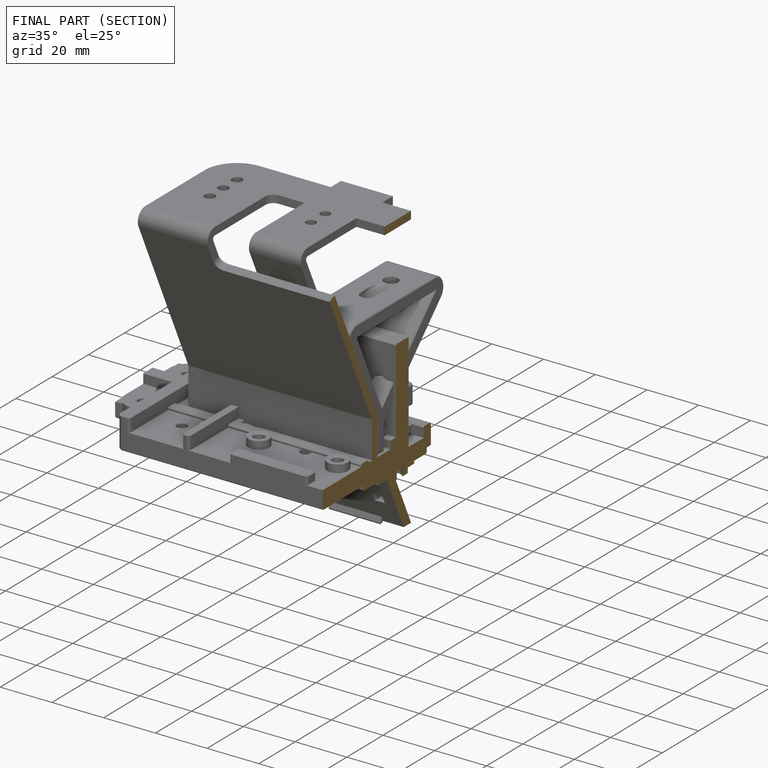
[diagram: finished part — half-section view (interior)]
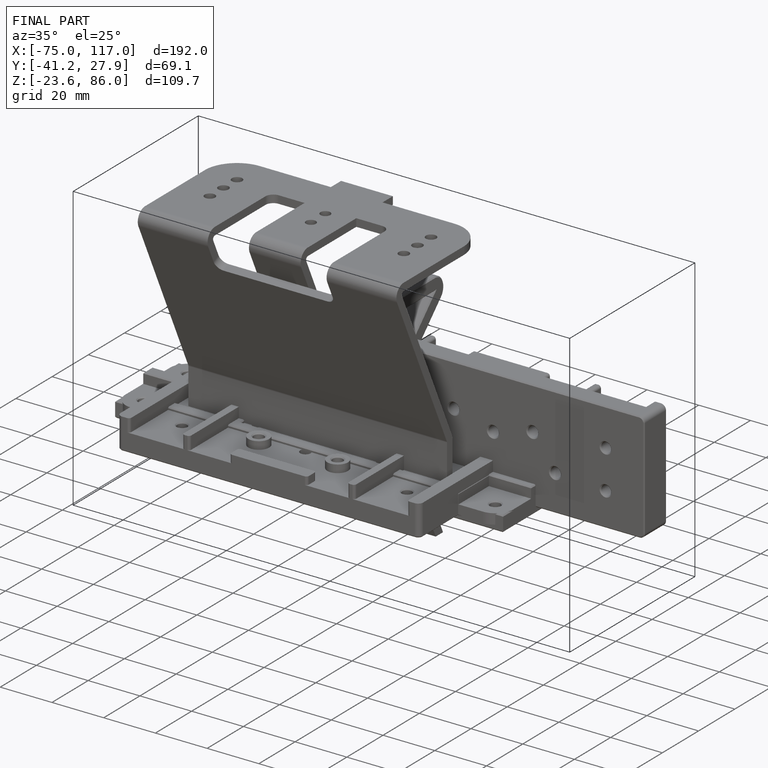
[diagram: finished part — iso view with bounding-box wireframe]
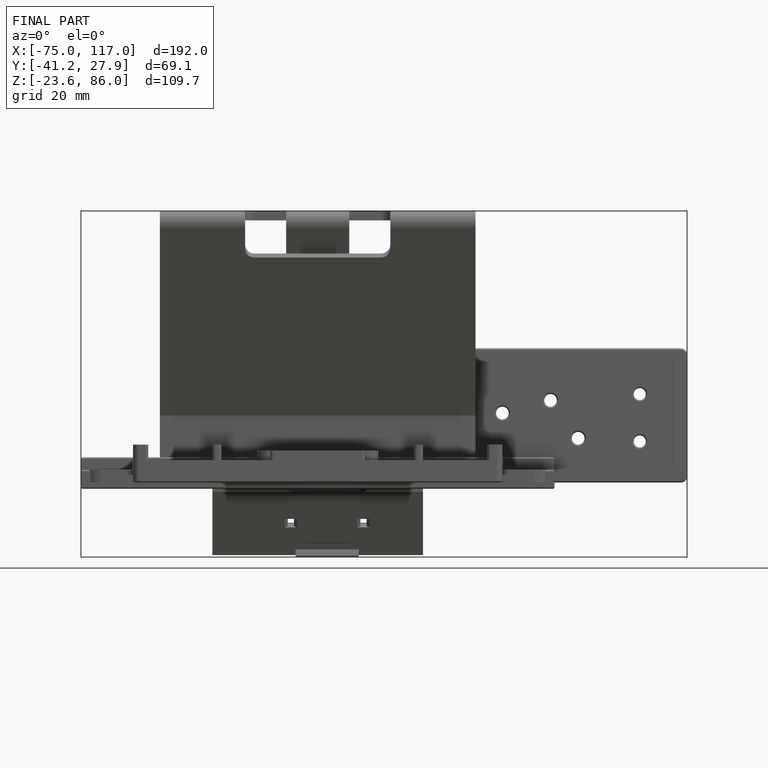
[diagram: finished part — front view with bounding-box wireframe]
